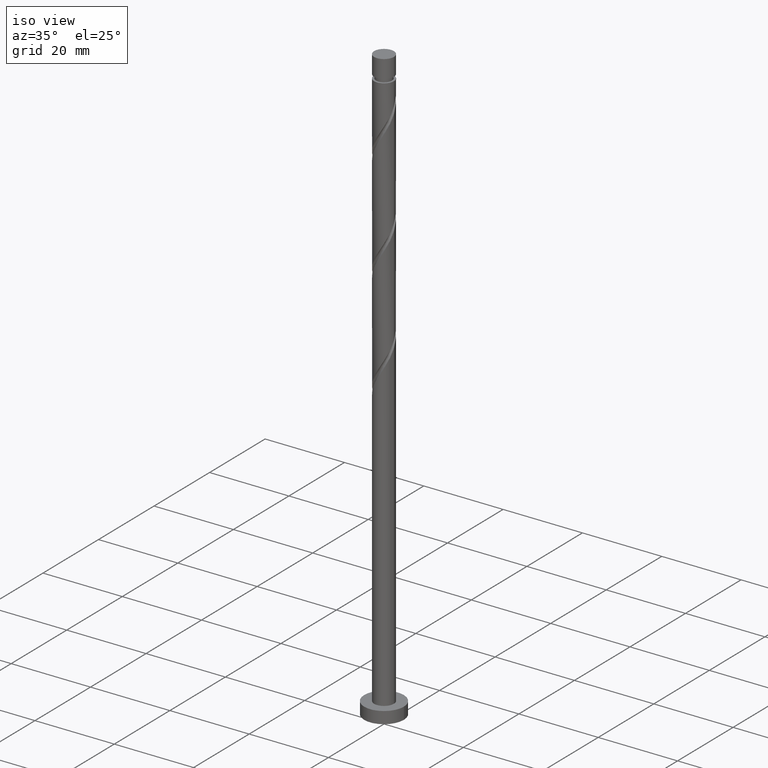
[diagram: clean part render]
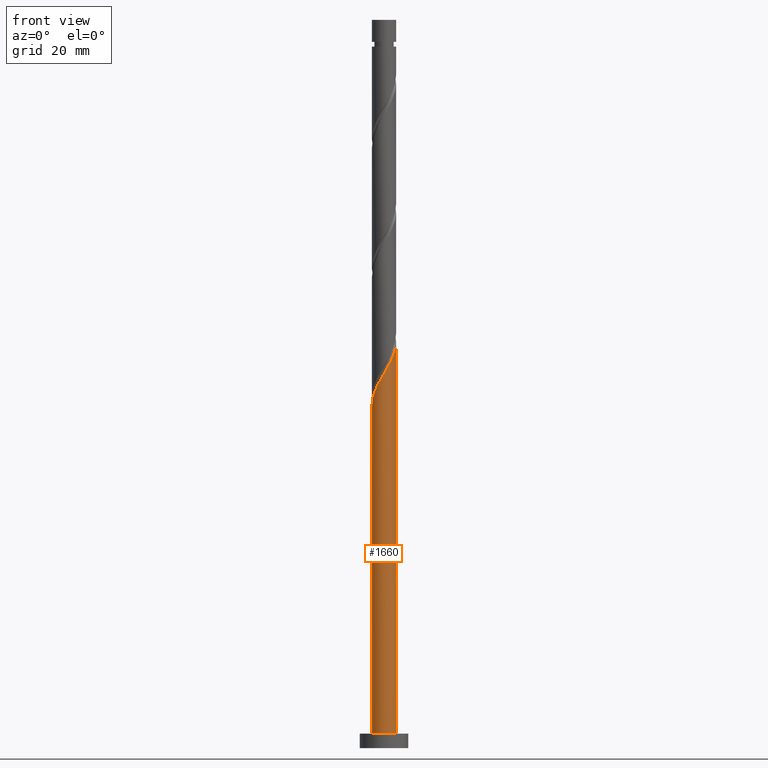
[diagram: tour spotlight — one face highlighted and labeled with its STEP entity id]
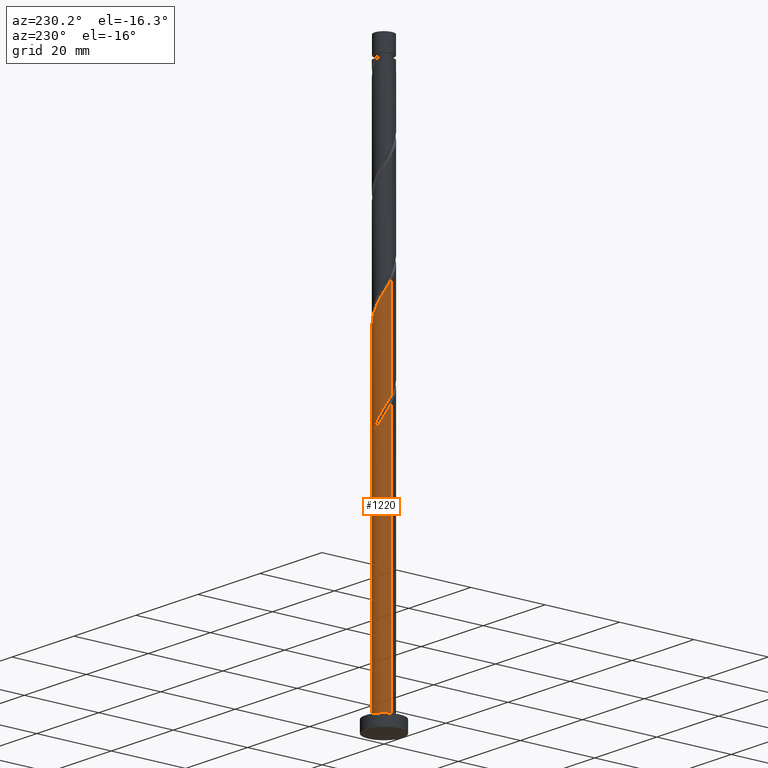
[diagram: tour spotlight — one face highlighted and labeled with its STEP entity id]
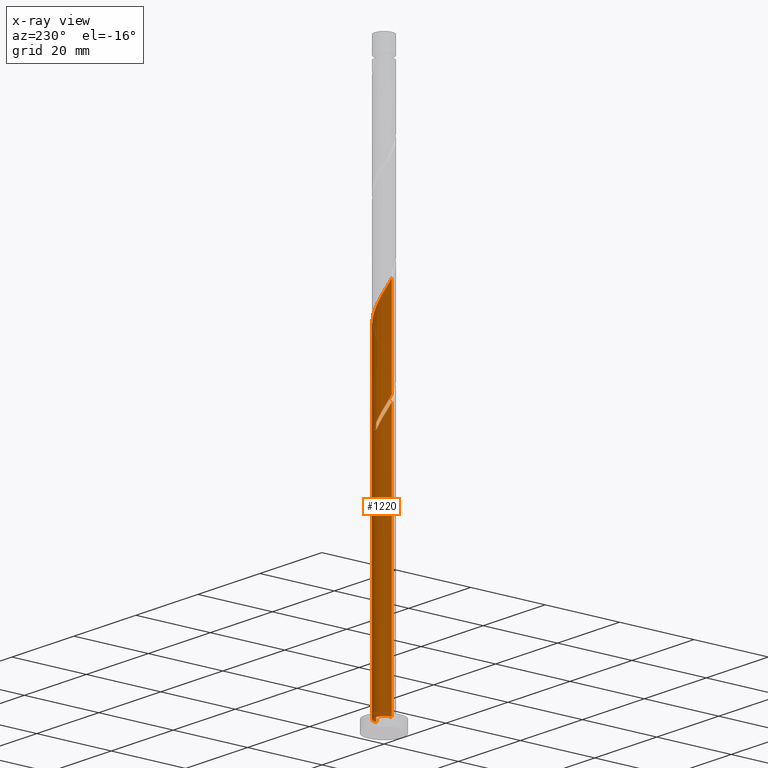
[diagram: x-ray of the same camera — body ghosted, this tour face saturated]
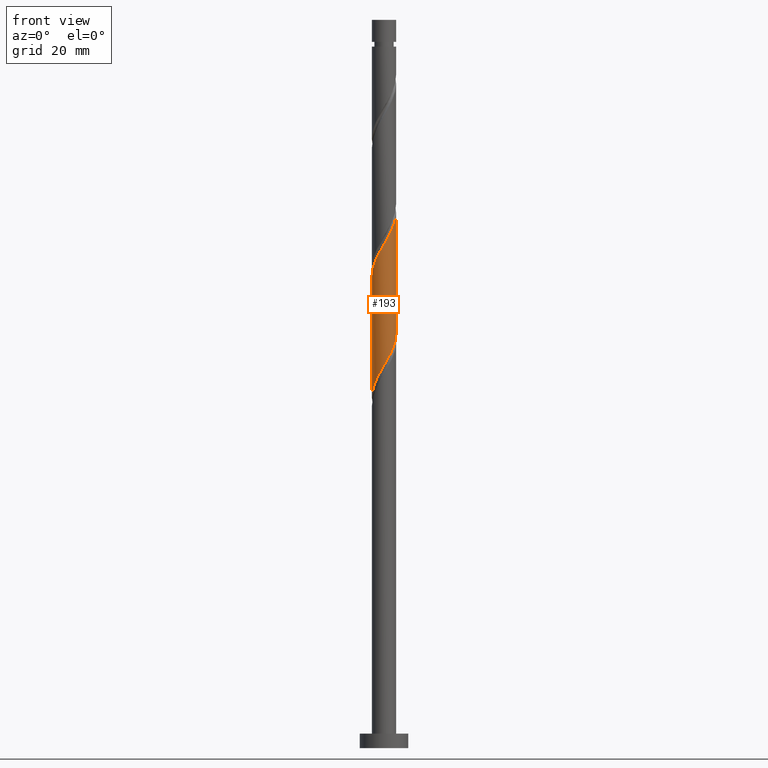
[diagram: tour spotlight — one face highlighted and labeled with its STEP entity id]
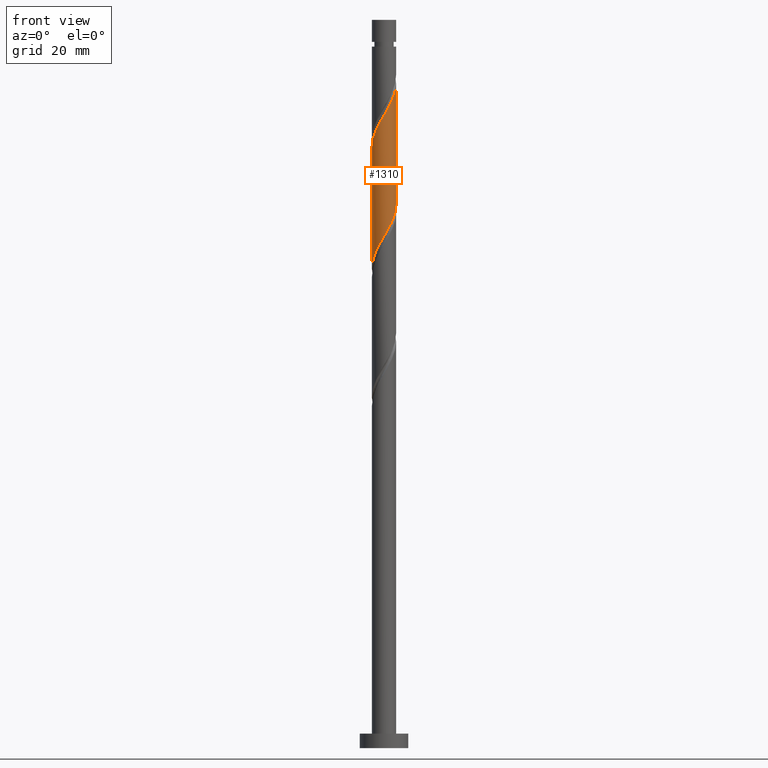
[diagram: tour spotlight — one face highlighted and labeled with its STEP entity id]
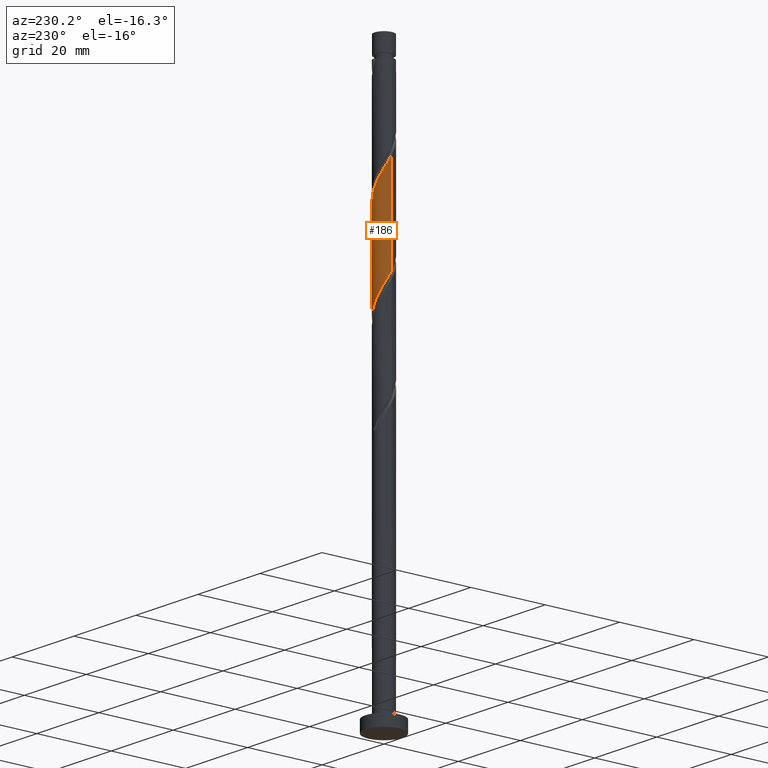
[diagram: tour spotlight — one face highlighted and labeled with its STEP entity id]
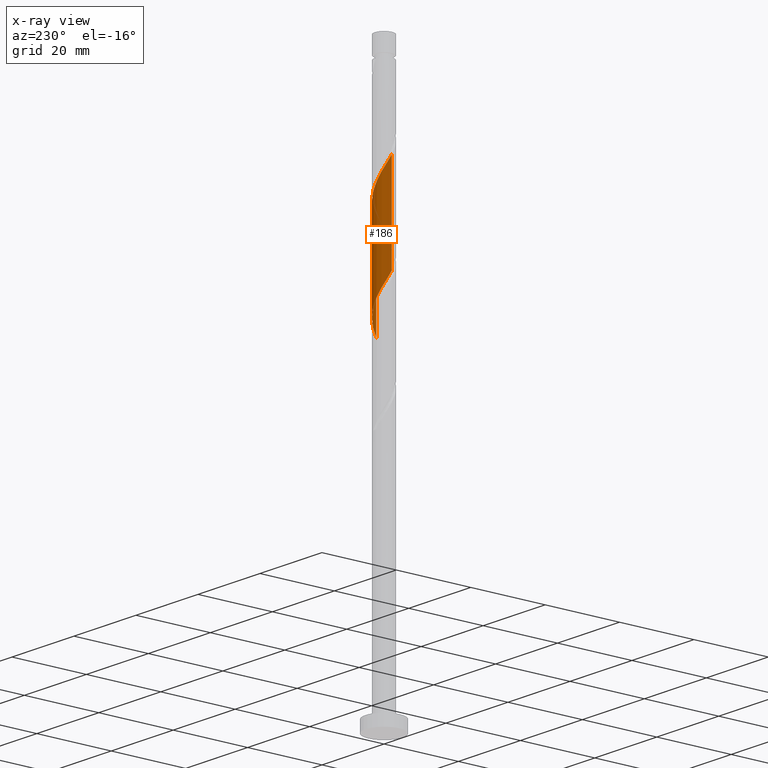
[diagram: x-ray of the same camera — body ghosted, this tour face saturated]
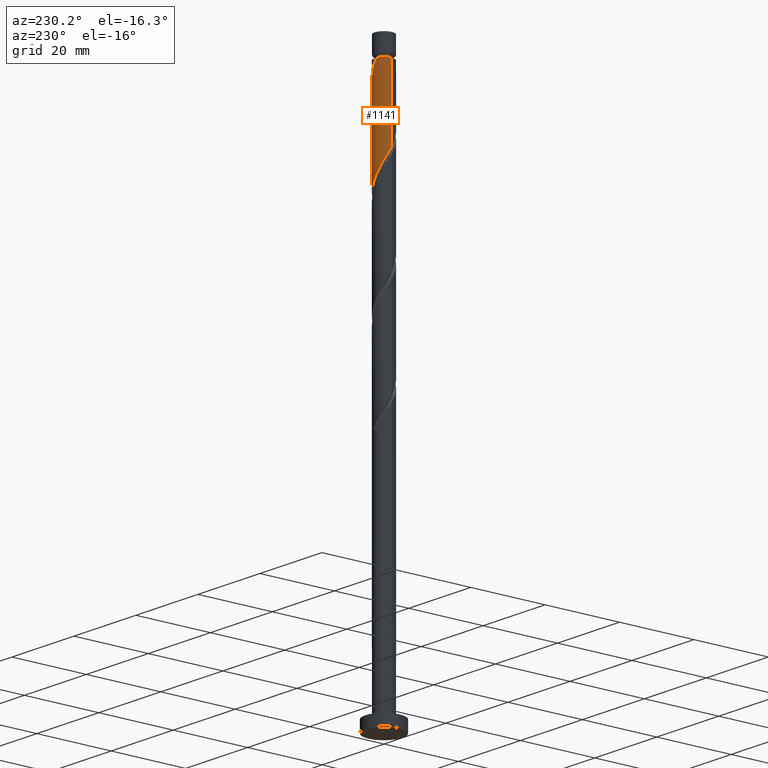
[diagram: tour spotlight — one face highlighted and labeled with its STEP entity id]
A machine part: a face-by-face anatomy tour. The part has 21 B-rep faces; the first image is the clean iso view, then the 6 largest visible faces are spotlighted one at a time (largest first), each with its STEP entity span.

Face 1 — front view, entity #1660. In plain terms, the highlighted cylindrical surface (edge-blend (fillet) strip) has radius 2.5 mm, axis along (-0, -0, -1).
Definition (entity closure, byte-faithful):
#3 = CIRCLE ( 'NONE', #1639, 2.500000000000000000 ) ;
#24 = EDGE_CURVE ( 'NONE', #293, #1240, #591, .T. ) ;
#117 = CARTESIAN_POINT ( 'NONE',  ( 2.500000000000003109, 2.191174233062213370E-15, 84.01617395349154549 ) ) ;
#133 = CARTESIAN_POINT ( 'NONE',  ( 2.435264748179753358, -0.5652305779706354727, 83.04744661461056410 ) ) ;
#172 = ORIENTED_EDGE ( 'NONE', *, *, #24, .F. ) ;
#195 = CARTESIAN_POINT ( 'NONE',  ( -2.500000000000003109, 4.674006469842605132E-15, 70.68284062015820268 ) ) ;
#242 = CARTESIAN_POINT ( 'NONE',  ( 2.500000000000000000, 3.061616997868383141E-16, 3.000000000000000000 ) ) ;
#255 = VERTEX_POINT ( 'NONE', #1051 ) ;
#286 = VECTOR ( 'NONE', #971, 1000.000000000000000 ) ;
#293 = VERTEX_POINT ( 'NONE', #300 ) ;
#295 = DIRECTION ( 'NONE',  ( -1.000000000000000000, 0.000000000000000000, 0.000000000000000000 ) ) ;
#300 = CARTESIAN_POINT ( 'NONE',  ( 2.500000000000003109, 2.191174233062213370E-15, 84.01617395349154549 ) ) ;
#327 = CARTESIAN_POINT ( 'NONE',  ( -2.233329684002606452, -1.179593048026944313, 72.74441631158029509 ) ) ;
#388 = CARTESIAN_POINT ( 'NONE',  ( 2.000754257700509076, -1.541487475360719062, 81.22926479642880793 ) ) ;
#407 = CARTESIAN_POINT ( 'NONE',  ( 0.000000000000000000, 0.000000000000000000, 150.4000000000000057 ) ) ;
#424 = EDGE_LOOP ( 'NONE', ( #172, #843, #1209, #1411 ) ) ;
#437 = VERTEX_POINT ( 'NONE', #1457 ) ;
#479 = CARTESIAN_POINT ( 'NONE',  ( -2.475193905018191920, -0.5026095591624449854, 71.53229509945909115 ) ) ;
#487 = CARTESIAN_POINT ( 'NONE',  ( 2.177375558832926217, -1.228428132125369387, 81.83532540248941700 ) ) ;
#490 = AXIS2_PLACEMENT_3D ( 'NONE', #407, #1560, #295 ) ;
#495 = CARTESIAN_POINT ( 'NONE',  ( -2.500000000000000000, 0.000000000000000000, 150.4000000000000057 ) ) ;
#497 = CARTESIAN_POINT ( 'NONE',  ( -0.9060516544719220411, -2.330036566114083829, 75.77471934188334046 ) ) ;
#504 = CARTESIAN_POINT ( 'NONE',  ( -1.525797355502945152, -1.980389464206532946, 74.56259812976213652 ) ) ;
#572 = CARTESIAN_POINT ( 'NONE',  ( -2.495863270706177417, -0.1437585960555965436, 70.92623449339846786 ) ) ;
#591 = LINE ( 'NONE', #1385, #286 ) ;
#615 = EDGE_CURVE ( 'NONE', #437, #293, #1038, .T. ) ;
#632 = CARTESIAN_POINT ( 'NONE',  ( -1.810534374112179323, -1.761012923450277601, 73.95653752370152745 ) ) ;
#651 = CARTESIAN_POINT ( 'NONE',  ( 2.353996859965343358, -0.9153687888900183811, 82.44138600855002608 ) ) ;
#672 = FACE_OUTER_BOUND ( 'NONE', #424, .T. ) ;
#743 = DIRECTION ( 'NONE',  ( 1.000000000000000000, 0.000000000000000000, 0.000000000000000000 ) ) ;
#771 = CARTESIAN_POINT ( 'NONE',  ( 0.4974937185533109263, -2.450000000000003286, 78.19896176612574834 ) ) ;
#843 = ORIENTED_EDGE ( 'NONE', *, *, #615, .F. ) ;
#879 = CARTESIAN_POINT ( 'NONE',  ( 0.000000000000000000, 0.000000000000000000, 3.000000000000000000 ) ) ;
#882 = CARTESIAN_POINT ( 'NONE',  ( 2.500000000000003997, -0.2863223184628080342, 83.53021400052024603 ) ) ;
#971 = DIRECTION ( 'NONE',  ( -0.000000000000000000, -0.000000000000000000, -1.000000000000000000 ) ) ;
#992 = VECTOR ( 'NONE', #1007, 1000.000000000000000 ) ;
#1007 = DIRECTION ( 'NONE',  ( -0.000000000000000000, -0.000000000000000000, -1.000000000000000000 ) ) ;
#1038 =( BOUNDED_CURVE ( )  B_SPLINE_CURVE ( 2, ( #195, #1375, #572, #479, #1472, #327, #1383, #632, #504, #1652, #497, #1644, #1145, #1530, #771, #1277, #1414, #1295, #1522, #388, #487, #651, #133, #882, #117 ),
 .UNSPECIFIED., .F., .T. ) 
 B_SPLINE_CURVE_WITH_KNOTS ( ( 3, 2, 2, 2, 2, 2, 2, 2, 2, 2, 2, 2, 3 ),
 ( 0.05452521624175119680, 0.05681818181818176772, 0.06818181818181823228, 0.07954545454545458583, 0.09090909090909093937, 0.1022727272727272929, 0.1136363636363636465, 0.1250000000000000000, 0.1363636363636363535, 0.1477272727272727071, 0.1590909090909090606, 0.1704545454545454142, 0.1795252162417512731 ),
 .UNSPECIFIED. ) 
 CURVE ( )  GEOMETRIC_REPRESENTATION_ITEM ( )  RATIONAL_B_SPLINE_CURVE ( ( 0.9061101570135650096, 0.9072237824201471179, 0.9090909090909247148, 0.8998376744372269531, 0.9090909090909247148, 0.8998376744372269531, 0.9090909090909247148, 0.8998376744372269531, 0.9090909090909247148, 0.8998376744372269531, 0.9090909090909247148, 0.8998376744372269531, 0.9090909090909247148, 0.8998376744372269531, 0.9090909090909247148, 0.8998376744372269531, 0.9090909090909247148, 0.8998376744372269531, 0.9090909090909247148, 0.8998376744372269531, 0.9090909090909247148, 0.8998376744372269531, 0.9090909090909247148, 0.9017048011080044390, 0.9061101570135650096 ) ) 
 REPRESENTATION_ITEM ( '' )  );
#1051 = CARTESIAN_POINT ( 'NONE',  ( -2.500000000000000000, 0.000000000000000000, 3.000000000000000000 ) ) ;
#1142 = LINE ( 'NONE', #495, #992 ) ;
#1145 = CARTESIAN_POINT ( 'NONE',  ( -0.2129030368922531502, -2.490917962696097110, 76.98684055400453019 ) ) ;
#1181 = CYLINDRICAL_SURFACE ( 'NONE', #490, 2.500000000000000000 ) ;
#1190 = EDGE_CURVE ( 'NONE', #437, #255, #1142, .T. ) ;
#1209 = ORIENTED_EDGE ( 'NONE', *, *, #1190, .T. ) ;
#1240 = VERTEX_POINT ( 'NONE', #242 ) ;
#1271 = EDGE_CURVE ( 'NONE', #255, #1240, #3, .T. ) ;
#1275 = DIRECTION ( 'NONE',  ( 0.000000000000000000, 0.000000000000000000, 1.000000000000000000 ) ) ;
#1277 = CARTESIAN_POINT ( 'NONE',  ( 0.8497505388409963833, -2.378471201873193941, 78.80502237218637163 ) ) ;
#1295 = CARTESIAN_POINT ( 'NONE',  ( 1.485422444420512189, -2.042724014156700907, 80.01714358430761820 ) ) ;
#1375 = CARTESIAN_POINT ( 'NONE',  ( -2.500000000000003997, -0.07193881630955346884, 70.80493862487641366 ) ) ;
#1383 = CARTESIAN_POINT ( 'NONE',  ( -2.021932029057392555, -1.470302985738610735, 73.35047691764091837 ) ) ;
#1385 = CARTESIAN_POINT ( 'NONE',  ( 2.500000000000000000, 3.061616997868383141E-16, 150.4000000000000057 ) ) ;
#1411 = ORIENTED_EDGE ( 'NONE', *, *, #1271, .T. ) ;
#1414 = CARTESIAN_POINT ( 'NONE',  ( 1.167586491630753454, -2.210597608014947202, 79.41108297824698070 ) ) ;
#1457 = CARTESIAN_POINT ( 'NONE',  ( -2.500000000000003553, 4.674006469842605132E-15, 70.68284062015818847 ) ) ;
#1472 = CARTESIAN_POINT ( 'NONE',  ( -2.354261794510398964, -0.8411013035946942606, 72.13835570551971443 ) ) ;
#1522 = CARTESIAN_POINT ( 'NONE',  ( 1.743088351060510188, -1.792105744758709429, 80.62320419036817043 ) ) ;
#1530 = CARTESIAN_POINT ( 'NONE',  ( 0.1452368982656260799, -2.521528798126814408, 77.59290116006516769 ) ) ;
#1560 = DIRECTION ( 'NONE',  ( -0.000000000000000000, -0.000000000000000000, -1.000000000000000000 ) ) ;
#1639 = AXIS2_PLACEMENT_3D ( 'NONE', #879, #1275, #743 ) ;
#1644 = CARTESIAN_POINT ( 'NONE',  ( -0.5710429720501326578, -2.460307127265380256, 76.38077994794392112 ) ) ;
#1652 = CARTESIAN_POINT ( 'NONE',  ( -1.241060336893711424, -2.199766004962788735, 75.16865873582273139 ) ) ;
#1660 = ADVANCED_FACE ( 'NONE', ( #672 ), #1181, .T. ) ;

Face 2 — auxiliary view, entity #1220. An x-ray twin of the same camera follows (body ghosted, this face saturated) — the face is partly hidden behind the body. In plain terms, the highlighted cylindrical surface (edge-blend (fillet) strip) has radius 2.5 mm, axis along (-0, -0, -1).
Definition (entity closure, byte-faithful):
#7 = CARTESIAN_POINT ( 'NONE',  ( -0.4974937185533107042, 2.450000000000003286, 91.53229509945911957 ) ) ;
#15 = CARTESIAN_POINT ( 'NONE',  ( 2.233329684002606896, 1.179593048026943647, 86.07774964491366632 ) ) ;
#24 = EDGE_CURVE ( 'NONE', #293, #1240, #591, .T. ) ;
#48 = ORIENTED_EDGE ( 'NONE', *, *, #939, .T. ) ;
#73 = CARTESIAN_POINT ( 'NONE',  ( -2.500000000000000444, 9.991156229935629260E-15, 72.38174957876000803 ) ) ;
#78 = CIRCLE ( 'NONE', #1022, 2.500000000000000000 ) ;
#122 = DIRECTION ( 'NONE',  ( -1.000000000000000000, 0.000000000000000000, 0.000000000000000000 ) ) ;
#126 = CARTESIAN_POINT ( 'NONE',  ( 0.2129030368922534833, 2.490917962696097554, 90.32017388733787300 ) ) ;
#143 = CARTESIAN_POINT ( 'NONE',  ( -1.485422444420512189, 2.042724014156701351, 93.35047691764094679 ) ) ;
#163 = EDGE_CURVE ( 'NONE', #293, #1133, #1237, .T. ) ;
#179 = ORIENTED_EDGE ( 'NONE', *, *, #24, .T. ) ;
#210 = CARTESIAN_POINT ( 'NONE',  ( -1.525797355502942043, 1.980389464206530281, 68.50199206915607419 ) ) ;
#238 = CARTESIAN_POINT ( 'NONE',  ( -2.500000000000003109, 0.2863223184628115314, 96.86354733385357463 ) ) ;
#242 = CARTESIAN_POINT ( 'NONE',  ( 2.500000000000000000, 3.061616997868383141E-16, 3.000000000000000000 ) ) ;
#247 = CARTESIAN_POINT ( 'NONE',  ( -0.1452368982656258023, 2.521528798126814408, 90.92623449339851049 ) ) ;
#255 = VERTEX_POINT ( 'NONE', #1051 ) ;
#265 = CARTESIAN_POINT ( 'NONE',  ( 0.5710429720501329909, 2.460307127265380256, 89.71411328127729234 ) ) ;
#283 = ORIENTED_EDGE ( 'NONE', *, *, #1190, .F. ) ;
#286 = VECTOR ( 'NONE', #971, 1000.000000000000000 ) ;
#287 = CARTESIAN_POINT ( 'NONE',  ( 0.4974937185533115924, 2.449999999999999734, 64.86562843279243396 ) ) ;
#293 = VERTEX_POINT ( 'NONE', #300 ) ;
#300 = CARTESIAN_POINT ( 'NONE',  ( 2.500000000000003109, 2.191174233062213370E-15, 84.01617395349154549 ) ) ;
#305 = CARTESIAN_POINT ( 'NONE',  ( 0.000000000000000000, 0.000000000000000000, 64.86562843279244817 ) ) ;
#331 = DIRECTION ( 'NONE',  ( 1.000000000000000000, 0.000000000000000000, 0.000000000000000000 ) ) ;
#339 = CARTESIAN_POINT ( 'NONE',  ( -2.495863270706175197, 0.1437585960555969877, 72.13835570551972864 ) ) ;
#347 = CARTESIAN_POINT ( 'NONE',  ( -2.500000000000003109, 4.674006469842605132E-15, 70.68284062015820268 ) ) ;
#354 = CARTESIAN_POINT ( 'NONE',  ( -2.500000000000003109, -2.295871977986687745E-15, 97.34950728682488830 ) ) ;
#367 = CARTESIAN_POINT ( 'NONE',  ( -2.353996859965342914, 0.9153687888900192693, 95.77471934188336888 ) ) ;
#379 = DIRECTION ( 'NONE',  ( -0.000000000000000000, -0.000000000000000000, -1.000000000000000000 ) ) ;
#383 = CARTESIAN_POINT ( 'NONE',  ( 0.9060516544719209309, 2.330036566114084273, 89.10805267521668327 ) ) ;
#437 = VERTEX_POINT ( 'NONE', #1457 ) ;
#457 = CARTESIAN_POINT ( 'NONE',  ( -2.354261794510395855, 0.8411013035946938166, 70.92623449339851049 ) ) ;
#470 = CARTESIAN_POINT ( 'NONE',  ( -2.435264748179753358, 0.5652305779706355837, 69.71411328127729234 ) ) ;
#491 = CARTESIAN_POINT ( 'NONE',  ( -2.177375558832926217, 1.228428132125368499, 95.16865873582271718 ) ) ;
#495 = CARTESIAN_POINT ( 'NONE',  ( -2.500000000000000000, 0.000000000000000000, 150.4000000000000057 ) ) ;
#506 = CARTESIAN_POINT ( 'NONE',  ( 1.525797355502944486, 1.980389464206532946, 87.89593146309546512 ) ) ;
#514 = CARTESIAN_POINT ( 'NONE',  ( -1.743088351060510188, 1.792105744758709429, 93.95653752370152745 ) ) ;
#539 = VERTEX_POINT ( 'NONE', #1096 ) ;
#555 = CARTESIAN_POINT ( 'NONE',  ( 0.000000000000000000, 0.000000000000000000, 3.000000000000000000 ) ) ;
#570 = CARTESIAN_POINT ( 'NONE',  ( -0.2129030368922524008, 2.490917962696093557, 66.07774964491365211 ) ) ;
#586 = EDGE_CURVE ( 'NONE', #1594, #437, #1118, .T. ) ;
#587 = CARTESIAN_POINT ( 'NONE',  ( -2.500000000000000444, 0.07193881630955813178, 72.25965157404178285 ) ) ;
#591 = LINE ( 'NONE', #1385, #286 ) ;
#645 = CARTESIAN_POINT ( 'NONE',  ( 2.500000000000003553, 0.07193881630955563378, 84.13827195820978488 ) ) ;
#646 = CIRCLE ( 'NONE', #941, 2.500000000000000000 ) ;
#701 = AXIS2_PLACEMENT_3D ( 'NONE', #1528, #379, #122 ) ;
#704 = CARTESIAN_POINT ( 'NONE',  ( -1.743088351060510188, 1.792105744758709429, 67.28987085703484183 ) ) ;
#706 =( BOUNDED_CURVE ( )  B_SPLINE_CURVE ( 2, ( #73, #587, #339, #1107, #457, #735, #1486, #1365, #210, #1116, #830, #1621, #570, #991, #760 ),
 .UNSPECIFIED., .F., .T. ) 
 B_SPLINE_CURVE_WITH_KNOTS ( ( 3, 2, 2, 2, 2, 2, 2, 3 ),
 ( 0.9295252162417513286, 0.9318181818181817677, 0.9431818181818182323, 0.9545454545454545858, 0.9659090909090909394, 0.9772727272727272929, 0.9886363636363636465, 1.000000000000000000 ),
 .UNSPECIFIED. ) 
 CURVE ( )  GEOMETRIC_REPRESENTATION_ITEM ( )  RATIONAL_B_SPLINE_CURVE ( ( 0.9061101570135583483, 0.9072237824201403456, 0.9090909090909178314, 0.8998376744372202918, 0.9090909090909178314, 0.8998376744372202918, 0.9090909090909178314, 0.8998376744372202918, 0.9090909090909178314, 0.8998376744372202918, 0.9090909090909178314, 0.8998376744372202918, 0.9090909090909178314, 0.8998376744372202918, 0.9090909090909178314 ) ) 
 REPRESENTATION_ITEM ( '' )  );
#735 = CARTESIAN_POINT ( 'NONE',  ( -2.233329684002602455, 1.179593048026942981, 70.32017388733790142 ) ) ;
#757 = CARTESIAN_POINT ( 'NONE',  ( -2.500000000000003109, -2.295871977986688140E-15, 97.34950728682488830 ) ) ;
#760 = CARTESIAN_POINT ( 'NONE',  ( 0.4974937185533115924, 2.449999999999999734, 64.86562843279243396 ) ) ;
#764 = CARTESIAN_POINT ( 'NONE',  ( 2.354261794510398964, 0.8411013035946940386, 85.47168903885304303 ) ) ;
#783 = CARTESIAN_POINT ( 'NONE',  ( 2.495863270706177417, 0.1437585960555962661, 84.25956782673182488 ) ) ;
#796 = EDGE_CURVE ( 'NONE', #1133, #539, #1582, .T. ) ;
#804 = DIRECTION ( 'NONE',  ( -0.000000000000000000, -0.000000000000000000, -1.000000000000000000 ) ) ;
#808 = VECTOR ( 'NONE', #804, 1000.000000000000000 ) ;
#830 = CARTESIAN_POINT ( 'NONE',  ( -0.9060516544719195986, 2.330036566114080276, 67.28987085703485604 ) ) ;
#874 = CARTESIAN_POINT ( 'NONE',  ( -2.000754257700509520, 1.541487475360718618, 67.89593146309545091 ) ) ;
#907 = ORIENTED_EDGE ( 'NONE', *, *, #586, .F. ) ;
#914 = CARTESIAN_POINT ( 'NONE',  ( -0.8497505388409966054, 2.378471201873193497, 92.13835570551970022 ) ) ;
#924 = ORIENTED_EDGE ( 'NONE', *, *, #1121, .F. ) ;
#939 = EDGE_CURVE ( 'NONE', #1240, #255, #646, .T. ) ;
#941 = AXIS2_PLACEMENT_3D ( 'NONE', #555, #1077, #331 ) ;
#955 = EDGE_LOOP ( 'NONE', ( #1321, #179, #48, #283, #907, #1311, #924, #1230 ) ) ;
#962 = CARTESIAN_POINT ( 'NONE',  ( -1.167586491630754342, 2.210597608014947202, 66.07774964491363789 ) ) ;
#971 = DIRECTION ( 'NONE',  ( -0.000000000000000000, -0.000000000000000000, -1.000000000000000000 ) ) ;
#986 = CARTESIAN_POINT ( 'NONE',  ( -2.500000000000003109, 0.2863223184628104212, 70.19688066718690322 ) ) ;
#991 = CARTESIAN_POINT ( 'NONE',  ( 0.1452368982656262741, 2.521528798126809967, 65.47168903885302882 ) ) ;
#992 = VECTOR ( 'NONE', #1007, 1000.000000000000000 ) ;
#994 = CARTESIAN_POINT ( 'NONE',  ( -2.177375558832926217, 1.228428132125368499, 68.50199206915604577 ) ) ;
#1007 = DIRECTION ( 'NONE',  ( -0.000000000000000000, -0.000000000000000000, -1.000000000000000000 ) ) ;
#1022 = AXIS2_PLACEMENT_3D ( 'NONE', #305, #1314, #1036 ) ;
#1025 = CARTESIAN_POINT ( 'NONE',  ( 1.241060336893710314, 2.199766004962788735, 88.50199206915608841 ) ) ;
#1028 = CYLINDRICAL_SURFACE ( 'NONE', #701, 2.500000000000000000 ) ;
#1036 = DIRECTION ( 'NONE',  ( -1.000000000000000000, 0.000000000000000000, 0.000000000000000000 ) ) ;
#1051 = CARTESIAN_POINT ( 'NONE',  ( -2.500000000000000000, 0.000000000000000000, 3.000000000000000000 ) ) ;
#1077 = DIRECTION ( 'NONE',  ( 0.000000000000000000, 0.000000000000000000, 1.000000000000000000 ) ) ;
#1096 = CARTESIAN_POINT ( 'NONE',  ( -2.500000000000000444, 9.991156229935629260E-15, 72.38174957876000803 ) ) ;
#1107 = CARTESIAN_POINT ( 'NONE',  ( -2.475193905018188367, 0.5026095591624447634, 71.53229509945910536 ) ) ;
#1116 = CARTESIAN_POINT ( 'NONE',  ( -1.241060336893708538, 2.199766004962784738, 67.89593146309545091 ) ) ;
#1118 =( BOUNDED_CURVE ( )  B_SPLINE_CURVE ( 2, ( #1600, #1119, #962, #1352, #704, #874, #994, #1624, #470, #986, #347 ),
 .UNSPECIFIED., .F., .T. ) 
 B_SPLINE_CURVE_WITH_KNOTS ( ( 3, 2, 2, 2, 2, 3 ),
 ( 0.000000000000000000, 0.01136363636363635354, 0.02272727272727270709, 0.03409090909090906063, 0.04545454545454541417, 0.05452521624175119680 ),
 .UNSPECIFIED. ) 
 CURVE ( )  GEOMETRIC_REPRESENTATION_ITEM ( )  RATIONAL_B_SPLINE_CURVE ( ( 0.9090909090909247148, 0.8998376744372269531, 0.9090909090909247148, 0.8998376744372269531, 0.9090909090909247148, 0.8998376744372269531, 0.9090909090909247148, 0.8998376744372269531, 0.9090909090909247148, 0.9017048011080045500, 0.9061101570135650096 ) ) 
 REPRESENTATION_ITEM ( '' )  );
#1119 = CARTESIAN_POINT ( 'NONE',  ( -0.8497505388409966054, 2.378471201873193497, 65.47168903885304303 ) ) ;
#1121 = EDGE_CURVE ( 'NONE', #539, #1568, #706, .T. ) ;
#1133 = VERTEX_POINT ( 'NONE', #354 ) ;
#1142 = LINE ( 'NONE', #495, #992 ) ;
#1147 = CARTESIAN_POINT ( 'NONE',  ( -1.167586491630754342, 2.210597608014947202, 92.74441631158026667 ) ) ;
#1157 = CARTESIAN_POINT ( 'NONE',  ( 1.810534374112180434, 1.761012923450276935, 87.28987085703487026 ) ) ;
#1190 = EDGE_CURVE ( 'NONE', #437, #255, #1142, .T. ) ;
#1220 = ADVANCED_FACE ( 'NONE', ( #1536 ), #1028, .T. ) ;
#1230 = ORIENTED_EDGE ( 'NONE', *, *, #796, .F. ) ;
#1237 =( BOUNDED_CURVE ( )  B_SPLINE_CURVE ( 2, ( #1663, #645, #783, #1303, #764, #15, #1549, #1157, #506, #1025, #383, #265, #126, #247, #7, #914, #1147, #143, #514, #1646, #491, #367, #1393, #238, #757 ),
 .UNSPECIFIED., .F., .T. ) 
 B_SPLINE_CURVE_WITH_KNOTS ( ( 3, 2, 2, 2, 2, 2, 2, 2, 2, 2, 2, 2, 3 ),
 ( 0.1795252162417512731, 0.1818181818181817677, 0.1931818181818182323, 0.2045454545454545858, 0.2159090909090909394, 0.2272727272727272929, 0.2386363636363636465, 0.2500000000000000000, 0.2613636363636363535, 0.2727272727272727071, 0.2840909090909090606, 0.2954545454545454142, 0.3045252162417511621 ),
 .UNSPECIFIED. ) 
 CURVE ( )  GEOMETRIC_REPRESENTATION_ITEM ( )  RATIONAL_B_SPLINE_CURVE ( ( 0.9061101570135650096, 0.9072237824201472289, 0.9090909090909247148, 0.8998376744372269531, 0.9090909090909247148, 0.8998376744372269531, 0.9090909090909247148, 0.8998376744372269531, 0.9090909090909247148, 0.8998376744372269531, 0.9090909090909247148, 0.8998376744372269531, 0.9090909090909247148, 0.8998376744372269531, 0.9090909090909247148, 0.8998376744372269531, 0.9090909090909247148, 0.8998376744372269531, 0.9090909090909247148, 0.8998376744372269531, 0.9090909090909247148, 0.8998376744372269531, 0.9090909090909247148, 0.9017048011080045500, 0.9061101570135648986 ) ) 
 REPRESENTATION_ITEM ( '' )  );
#1240 = VERTEX_POINT ( 'NONE', #242 ) ;
#1303 = CARTESIAN_POINT ( 'NONE',  ( 2.475193905018191920, 0.5026095591624447634, 84.86562843279243396 ) ) ;
#1311 = ORIENTED_EDGE ( 'NONE', *, *, #1482, .T. ) ;
#1314 = DIRECTION ( 'NONE',  ( 0.000000000000000000, -0.000000000000000000, -1.000000000000000000 ) ) ;
#1321 = ORIENTED_EDGE ( 'NONE', *, *, #163, .F. ) ;
#1352 = CARTESIAN_POINT ( 'NONE',  ( -1.485422444420512189, 2.042724014156701351, 66.68381025097424697 ) ) ;
#1365 = CARTESIAN_POINT ( 'NONE',  ( -1.810534374112175993, 1.761012923450275158, 69.10805267521668327 ) ) ;
#1385 = CARTESIAN_POINT ( 'NONE',  ( 2.500000000000000000, 3.061616997868383141E-16, 150.4000000000000057 ) ) ;
#1393 = CARTESIAN_POINT ( 'NONE',  ( -2.435264748179753358, 0.5652305779706355837, 96.38077994794393533 ) ) ;
#1455 = CARTESIAN_POINT ( 'NONE',  ( -2.500000000000000000, 0.000000000000000000, 150.4000000000000057 ) ) ;
#1457 = CARTESIAN_POINT ( 'NONE',  ( -2.500000000000003553, 4.674006469842605132E-15, 70.68284062015818847 ) ) ;
#1482 = EDGE_CURVE ( 'NONE', #1594, #1568, #78, .T. ) ;
#1486 = CARTESIAN_POINT ( 'NONE',  ( -2.021932029057389890, 1.470302985738608958, 69.71411328127730656 ) ) ;
#1528 = CARTESIAN_POINT ( 'NONE',  ( 0.000000000000000000, 0.000000000000000000, 150.4000000000000057 ) ) ;
#1536 = FACE_OUTER_BOUND ( 'NONE', #955, .T. ) ;
#1549 = CARTESIAN_POINT ( 'NONE',  ( 2.021932029057392999, 1.470302985738610069, 86.68381025097424697 ) ) ;
#1568 = VERTEX_POINT ( 'NONE', #287 ) ;
#1572 = CARTESIAN_POINT ( 'NONE',  ( -0.4974937185533107042, 2.450000000000003286, 64.86562843279243396 ) ) ;
#1582 = LINE ( 'NONE', #1455, #808 ) ;
#1594 = VERTEX_POINT ( 'NONE', #1572 ) ;
#1600 = CARTESIAN_POINT ( 'NONE',  ( -0.4974937185533107042, 2.450000000000003286, 64.86562843279243396 ) ) ;
#1621 = CARTESIAN_POINT ( 'NONE',  ( -0.5710429720501312145, 2.460307127265375371, 66.68381025097424697 ) ) ;
#1624 = CARTESIAN_POINT ( 'NONE',  ( -2.353996859965342914, 0.9153687888900192693, 69.10805267521666906 ) ) ;
#1646 = CARTESIAN_POINT ( 'NONE',  ( -2.000754257700509520, 1.541487475360718618, 94.56259812976215073 ) ) ;
#1663 = CARTESIAN_POINT ( 'NONE',  ( 2.500000000000003109, 2.191174233062213370E-15, 84.01617395349154549 ) ) ;

Face 3 — front view, entity #193. In plain terms, the highlighted cylindrical surface (edge-blend (fillet) strip) has radius 2.5 mm, axis along (-0, -0, -1).
Definition (entity closure, byte-faithful):
#21 = CARTESIAN_POINT ( 'NONE',  ( 0.4974937185533109263, -2.450000000000003286, 104.8656284327924055 ) ) ;
#38 = CARTESIAN_POINT ( 'NONE',  ( -0.2129030368922531502, -2.490917962696097110, 103.6535072206712442 ) ) ;
#40 = DIRECTION ( 'NONE',  ( -1.000000000000000000, 0.000000000000000000, 0.000000000000000000 ) ) ;
#46 = CARTESIAN_POINT ( 'NONE',  ( 2.500000000000002665, 2.191174233062213370E-15, 110.6828406201582169 ) ) ;
#52 = CARTESIAN_POINT ( 'NONE',  ( -1.241060336893711424, -2.199766004962788735, 101.8353254024894170 ) ) ;
#60 = CARTESIAN_POINT ( 'NONE',  ( 1.810534374112176215, -1.761012923450274714, 82.44138600854999765 ) ) ;
#69 =( BOUNDED_CURVE ( )  B_SPLINE_CURVE ( 2, ( #1343, #190, #82, #1251, #1470, #182, #1100, #60, #1094, #435, #1125, #952, #576, #1606, #975, #853, #967, #324, #345, #443, #1464, #200, #317, #845, #959 ),
 .UNSPECIFIED., .F., .T. ) 
 B_SPLINE_CURVE_WITH_KNOTS ( ( 3, 2, 2, 2, 2, 2, 2, 2, 2, 2, 2, 2, 3 ),
 ( 0.8045252162417512176, 0.8068181818181817677, 0.8181818181818182323, 0.8295454545454545858, 0.8409090909090909394, 0.8522727272727272929, 0.8636363636363636465, 0.8750000000000000000, 0.8863636363636363535, 0.8977272727272727071, 0.9090909090909090606, 0.9204545454545454142, 0.9295252162417513286 ),
 .UNSPECIFIED. ) 
 CURVE ( )  GEOMETRIC_REPRESENTATION_ITEM ( )  RATIONAL_B_SPLINE_CURVE ( ( 0.9061101570135582373, 0.9072237824201403456, 0.9090909090909178314, 0.8998376744372202918, 0.9090909090909178314, 0.8998376744372202918, 0.9090909090909178314, 0.8998376744372202918, 0.9090909090909178314, 0.8998376744372202918, 0.9090909090909178314, 0.8998376744372202918, 0.9090909090909178314, 0.8998376744372202918, 0.9090909090909178314, 0.8998376744372202918, 0.9090909090909178314, 0.8998376744372202918, 0.9090909090909178314, 0.8998376744372202918, 0.9090909090909178314, 0.8998376744372202918, 0.9090909090909178314, 0.9017048011079977776, 0.9061101570135583483 ) ) 
 REPRESENTATION_ITEM ( '' )  );
#82 = CARTESIAN_POINT ( 'NONE',  ( 2.495863270706175197, -0.1437585960555973208, 85.47168903885302882 ) ) ;
#148 = CARTESIAN_POINT ( 'NONE',  ( 0.8497505388409963833, -2.378471201873193941, 105.4716890388530430 ) ) ;
#153 = LINE ( 'NONE', #917, #709 ) ;
#156 = CARTESIAN_POINT ( 'NONE',  ( -2.233329684002606452, -1.179593048026944313, 99.41108297824700912 ) ) ;
#182 = CARTESIAN_POINT ( 'NONE',  ( 2.233329684002602455, -1.179593048026942759, 83.65350722067120159 ) ) ;
#190 = CARTESIAN_POINT ( 'NONE',  ( 2.500000000000000444, -0.07193881630955506479, 85.59298490737509724 ) ) ;
#193 = ADVANCED_FACE ( 'NONE', ( #319 ), #1337, .T. ) ;
#200 = CARTESIAN_POINT ( 'NONE',  ( -2.353996859965338917, -0.9153687888900168268, 73.95653752370151324 ) ) ;
#204 = EDGE_LOOP ( 'NONE', ( #678, #528, #259, #1187 ) ) ;
#259 = ORIENTED_EDGE ( 'NONE', *, *, #796, .T. ) ;
#298 = CARTESIAN_POINT ( 'NONE',  ( 2.435264748179753358, -0.5652305779706354727, 109.7141132812772781 ) ) ;
#317 = CARTESIAN_POINT ( 'NONE',  ( -2.435264748179748917, -0.5652305779706338074, 73.35047691764091837 ) ) ;
#319 = FACE_OUTER_BOUND ( 'NONE', #204, .T. ) ;
#324 = CARTESIAN_POINT ( 'NONE',  ( -1.485422444420509969, -2.042724014156698242, 76.38077994794392112 ) ) ;
#345 = CARTESIAN_POINT ( 'NONE',  ( -1.743088351060508412, -1.792105744758706098, 75.77471934188334046 ) ) ;
#354 = CARTESIAN_POINT ( 'NONE',  ( -2.500000000000003109, -2.295871977986687745E-15, 97.34950728682488830 ) ) ;
#402 = CARTESIAN_POINT ( 'NONE',  ( 2.177375558832926217, -1.228428132125369387, 108.5019920691560600 ) ) ;
#420 = CARTESIAN_POINT ( 'NONE',  ( 1.485422444420512189, -2.042724014156700907, 106.6838102509742612 ) ) ;
#435 = CARTESIAN_POINT ( 'NONE',  ( 1.241060336893708094, -2.199766004962785182, 81.22926479642880793 ) ) ;
#443 = CARTESIAN_POINT ( 'NONE',  ( -2.000754257700505967, -1.541487475360714621, 75.16865873582273139 ) ) ;
#525 = CARTESIAN_POINT ( 'NONE',  ( 1.743088351060510188, -1.792105744758709429, 107.2898708570348276 ) ) ;
#528 = ORIENTED_EDGE ( 'NONE', *, *, #891, .F. ) ;
#539 = VERTEX_POINT ( 'NONE', #1096 ) ;
#545 = CARTESIAN_POINT ( 'NONE',  ( -0.5710429720501326578, -2.460307127265380256, 103.0474466146106209 ) ) ;
#557 = VERTEX_POINT ( 'NONE', #838 ) ;
#563 = CARTESIAN_POINT ( 'NONE',  ( -0.9060516544719220411, -2.330036566114083829, 102.4413860085499834 ) ) ;
#566 = DIRECTION ( 'NONE',  ( -0.000000000000000000, -0.000000000000000000, -1.000000000000000000 ) ) ;
#576 = CARTESIAN_POINT ( 'NONE',  ( 0.2129030368922517069, -2.490917962696093557, 79.41108297824698070 ) ) ;
#581 =( BOUNDED_CURVE ( )  B_SPLINE_CURVE ( 2, ( #1177, #1316, #694, #1301, #1438, #156, #1445, #675, #1210, #52, #563, #545, #38, #1068, #21, #148, #666, #420, #525, #1049, #402, #936, #298, #684, #46 ),
 .UNSPECIFIED., .F., .T. ) 
 B_SPLINE_CURVE_WITH_KNOTS ( ( 3, 2, 2, 2, 2, 2, 2, 2, 2, 2, 2, 2, 3 ),
 ( 0.3045252162417511621, 0.3068181818181817677, 0.3181818181818182323, 0.3295454545454545858, 0.3409090909090909394, 0.3522727272727272929, 0.3636363636363636465, 0.3750000000000000000, 0.3863636363636363535, 0.3977272727272727071, 0.4090909090909090606, 0.4204545454545454142, 0.4295252162417516062 ),
 .UNSPECIFIED. ) 
 CURVE ( )  GEOMETRIC_REPRESENTATION_ITEM ( )  RATIONAL_B_SPLINE_CURVE ( ( 0.9061101570135648986, 0.9072237824201471179, 0.9090909090909247148, 0.8998376744372269531, 0.9090909090909247148, 0.8998376744372269531, 0.9090909090909247148, 0.8998376744372269531, 0.9090909090909247148, 0.8998376744372269531, 0.9090909090909247148, 0.8998376744372269531, 0.9090909090909247148, 0.8998376744372269531, 0.9090909090909247148, 0.8998376744372269531, 0.9090909090909247148, 0.8998376744372269531, 0.9090909090909247148, 0.8998376744372269531, 0.9090909090909247148, 0.8998376744372269531, 0.9090909090909247148, 0.9017048011080042169, 0.9061101570135653427 ) ) 
 REPRESENTATION_ITEM ( '' )  );
#666 = CARTESIAN_POINT ( 'NONE',  ( 1.167586491630753454, -2.210597608014947202, 106.0777496449136521 ) ) ;
#668 = CARTESIAN_POINT ( 'NONE',  ( 0.000000000000000000, 0.000000000000000000, 150.4000000000000057 ) ) ;
#675 = CARTESIAN_POINT ( 'NONE',  ( -1.810534374112179323, -1.761012923450277601, 100.6232041903681989 ) ) ;
#678 = ORIENTED_EDGE ( 'NONE', *, *, #1638, .F. ) ;
#684 = CARTESIAN_POINT ( 'NONE',  ( 2.500000000000006217, -0.2863223184627975426, 110.1968806671869316 ) ) ;
#694 = CARTESIAN_POINT ( 'NONE',  ( -2.495863270706177417, -0.1437585960555965436, 97.59290116006515348 ) ) ;
#709 = VECTOR ( 'NONE', #1313, 1000.000000000000000 ) ;
#722 = VERTEX_POINT ( 'NONE', #1136 ) ;
#796 = EDGE_CURVE ( 'NONE', #1133, #539, #1582, .T. ) ;
#804 = DIRECTION ( 'NONE',  ( -0.000000000000000000, -0.000000000000000000, -1.000000000000000000 ) ) ;
#808 = VECTOR ( 'NONE', #804, 1000.000000000000000 ) ;
#827 = AXIS2_PLACEMENT_3D ( 'NONE', #668, #566, #40 ) ;
#838 = CARTESIAN_POINT ( 'NONE',  ( 2.500000000000000444, 3.484939223914673654E-15, 85.71508291209332242 ) ) ;
#845 = CARTESIAN_POINT ( 'NONE',  ( -2.499999999999999556, -0.2863223184628050366, 72.86770953173127907 ) ) ;
#853 = CARTESIAN_POINT ( 'NONE',  ( -0.8497505388409957172, -2.378471201873189500, 77.59290116006515348 ) ) ;
#891 = EDGE_CURVE ( 'NONE', #1133, #722, #581, .T. ) ;
#917 = CARTESIAN_POINT ( 'NONE',  ( 2.500000000000000000, 3.061616997868383141E-16, 150.4000000000000057 ) ) ;
#936 = CARTESIAN_POINT ( 'NONE',  ( 2.353996859965343358, -0.9153687888900183811, 109.1080526752166691 ) ) ;
#952 = CARTESIAN_POINT ( 'NONE',  ( 0.5710429720501314366, -2.460307127265375815, 80.01714358430758978 ) ) ;
#959 = CARTESIAN_POINT ( 'NONE',  ( -2.500000000000000444, 9.991156229935629260E-15, 72.38174957876000803 ) ) ;
#967 = CARTESIAN_POINT ( 'NONE',  ( -1.167586491630752565, -2.210597608014943649, 76.98684055400455861 ) ) ;
#975 = CARTESIAN_POINT ( 'NONE',  ( -0.4974937185533113704, -2.449999999999999734, 78.19896176612577676 ) ) ;
#1046 = EDGE_CURVE ( 'NONE', #557, #539, #69, .T. ) ;
#1049 = CARTESIAN_POINT ( 'NONE',  ( 2.000754257700509076, -1.541487475360719062, 107.8959314630954651 ) ) ;
#1068 = CARTESIAN_POINT ( 'NONE',  ( 0.1452368982656260799, -2.521528798126814408, 104.2595678267318391 ) ) ;
#1094 = CARTESIAN_POINT ( 'NONE',  ( 1.525797355502941821, -1.980389464206530281, 81.83532540248940279 ) ) ;
#1096 = CARTESIAN_POINT ( 'NONE',  ( -2.500000000000000444, 9.991156229935629260E-15, 72.38174957876000803 ) ) ;
#1100 = CARTESIAN_POINT ( 'NONE',  ( 2.021932029057389890, -1.470302985738608958, 83.04744661461060673 ) ) ;
#1125 = CARTESIAN_POINT ( 'NONE',  ( 0.9060516544719195986, -2.330036566114080276, 80.62320419036822727 ) ) ;
#1133 = VERTEX_POINT ( 'NONE', #354 ) ;
#1136 = CARTESIAN_POINT ( 'NONE',  ( 2.500000000000003109, 2.191174233062213370E-15, 110.6828406201582169 ) ) ;
#1177 = CARTESIAN_POINT ( 'NONE',  ( -2.500000000000003109, -2.295871977986688140E-15, 97.34950728682488830 ) ) ;
#1187 = ORIENTED_EDGE ( 'NONE', *, *, #1046, .F. ) ;
#1210 = CARTESIAN_POINT ( 'NONE',  ( -1.525797355502945152, -1.980389464206532946, 101.2292647964287653 ) ) ;
#1251 = CARTESIAN_POINT ( 'NONE',  ( 2.475193905018188367, -0.5026095591624450964, 84.86562843279240553 ) ) ;
#1301 = CARTESIAN_POINT ( 'NONE',  ( -2.475193905018191920, -0.5026095591624449854, 98.19896176612579097 ) ) ;
#1313 = DIRECTION ( 'NONE',  ( -0.000000000000000000, -0.000000000000000000, -1.000000000000000000 ) ) ;
#1316 = CARTESIAN_POINT ( 'NONE',  ( -2.500000000000003997, -0.07193881630955233086, 97.47160529154309927 ) ) ;
#1337 = CYLINDRICAL_SURFACE ( 'NONE', #827, 2.500000000000000000 ) ;
#1343 = CARTESIAN_POINT ( 'NONE',  ( 2.500000000000000444, 3.484939223914673654E-15, 85.71508291209332242 ) ) ;
#1438 = CARTESIAN_POINT ( 'NONE',  ( -2.354261794510398964, -0.8411013035946942606, 98.80502237218638584 ) ) ;
#1445 = CARTESIAN_POINT ( 'NONE',  ( -2.021932029057392555, -1.470302985738610735, 100.0171435843075898 ) ) ;
#1455 = CARTESIAN_POINT ( 'NONE',  ( -2.500000000000000000, 0.000000000000000000, 150.4000000000000057 ) ) ;
#1464 = CARTESIAN_POINT ( 'NONE',  ( -2.177375558832922664, -1.228428132125366279, 74.56259812976215073 ) ) ;
#1470 = CARTESIAN_POINT ( 'NONE',  ( 2.354261794510395411, -0.8411013035946941496, 84.25956782673182488 ) ) ;
#1582 = LINE ( 'NONE', #1455, #808 ) ;
#1606 = CARTESIAN_POINT ( 'NONE',  ( -0.1452368982656269403, -2.521528798126809967, 78.80502237218638584 ) ) ;
#1638 = EDGE_CURVE ( 'NONE', #722, #557, #153, .T. ) ;

Face 4 — front view, entity #1310. In plain terms, the highlighted cylindrical surface (edge-blend (fillet) strip) has radius 2.5 mm, axis along (-0, -0, -1).
Definition (entity closure, byte-faithful):
#32 = CARTESIAN_POINT ( 'NONE',  ( 1.743088351060510188, -1.792105744758709429, 133.9565375237014564 ) ) ;
#44 = DIRECTION ( 'NONE',  ( -0.000000000000000000, -0.000000000000000000, -1.000000000000000000 ) ) ;
#63 = ORIENTED_EDGE ( 'NONE', *, *, #462, .F. ) ;
#70 = CARTESIAN_POINT ( 'NONE',  ( 2.354261794510395411, -0.8411013035946941496, 110.9262344933984679 ) ) ;
#91 = CARTESIAN_POINT ( 'NONE',  ( -2.000754257700505967, -1.541487475360714621, 101.8353254024893886 ) ) ;
#150 = CARTESIAN_POINT ( 'NONE',  ( -1.810534374112179323, -1.761012923450277601, 127.2898708570348560 ) ) ;
#159 = CARTESIAN_POINT ( 'NONE',  ( 1.167586491630753454, -2.210597608014947202, 132.7444163115802951 ) ) ;
#166 = LINE ( 'NONE', #1555, #1370 ) ;
#168 = CARTESIAN_POINT ( 'NONE',  ( -0.5710429720501326578, -2.460307127265380256, 129.7141132812772639 ) ) ;
#212 = CARTESIAN_POINT ( 'NONE',  ( -2.500000000000000888, -0.2863223184628016504, 99.53437619839796469 ) ) ;
#221 = CARTESIAN_POINT ( 'NONE',  ( 2.500000000000000444, 3.484939223914673654E-15, 112.3817495787600080 ) ) ;
#246 = EDGE_CURVE ( 'NONE', #1286, #1213, #881, .T. ) ;
#277 = CARTESIAN_POINT ( 'NONE',  ( 2.500000000000000000, 3.061616997868383141E-16, 150.4000000000000057 ) ) ;
#282 = ORIENTED_EDGE ( 'NONE', *, *, #246, .F. ) ;
#291 = CARTESIAN_POINT ( 'NONE',  ( 0.8497505388409963833, -2.378471201873193941, 132.1383557055197002 ) ) ;
#307 = DIRECTION ( 'NONE',  ( -0.000000000000000000, -0.000000000000000000, -1.000000000000000000 ) ) ;
#334 = CARTESIAN_POINT ( 'NONE',  ( 2.021932029057389890, -1.470302985738608958, 109.7141132812772923 ) ) ;
#356 = CARTESIAN_POINT ( 'NONE',  ( 1.810534374112176215, -1.761012923450274714, 109.1080526752166548 ) ) ;
#376 = VECTOR ( 'NONE', #44, 1000.000000000000000 ) ;
#414 = CARTESIAN_POINT ( 'NONE',  ( -1.241060336893711424, -2.199766004962788735, 128.5019920691560742 ) ) ;
#452 = CARTESIAN_POINT ( 'NONE',  ( -2.353996859965338917, -0.9153687888900168268, 100.6232041903681704 ) ) ;
#462 = EDGE_CURVE ( 'NONE', #1115, #1558, #1626, .T. ) ;
#538 = CARTESIAN_POINT ( 'NONE',  ( 2.435264748179753358, -0.5652305779706354727, 136.3807799479439211 ) ) ;
#558 = CARTESIAN_POINT ( 'NONE',  ( 0.4974937185533109263, -2.450000000000003286, 131.5322950994590769 ) ) ;
#578 = CARTESIAN_POINT ( 'NONE',  ( 0.5710429720501314366, -2.460307127265375815, 106.6838102509742470 ) ) ;
#589 = CARTESIAN_POINT ( 'NONE',  ( -2.500000000000000444, 9.991156229935629260E-15, 99.04841624542666523 ) ) ;
#677 = CARTESIAN_POINT ( 'NONE',  ( -2.354261794510398964, -0.8411013035946942606, 125.4716890388530004 ) ) ;
#688 = CARTESIAN_POINT ( 'NONE',  ( 2.177375558832926217, -1.228428132125369387, 135.1686587358227030 ) ) ;
#697 = CARTESIAN_POINT ( 'NONE',  ( 1.485422444420512189, -2.042724014156700907, 133.3504769176409184 ) ) ;
#713 = CARTESIAN_POINT ( 'NONE',  ( 2.495863270706175197, -0.1437585960555973208, 112.1383557055197144 ) ) ;
#719 = CARTESIAN_POINT ( 'NONE',  ( -0.1452368982656269403, -2.521528798126809967, 105.4716890388530288 ) ) ;
#737 = CARTESIAN_POINT ( 'NONE',  ( 0.2129030368922517069, -2.490917962696093557, 106.0777496449136379 ) ) ;
#753 = FACE_OUTER_BOUND ( 'NONE', #1054, .T. ) ;
#832 = CARTESIAN_POINT ( 'NONE',  ( 2.353996859965343358, -0.9153687888900183811, 135.7747193418833547 ) ) ;
#836 = CARTESIAN_POINT ( 'NONE',  ( 2.500000000000000444, 3.484939223914673654E-15, 112.3817495787600080 ) ) ;
#848 = CARTESIAN_POINT ( 'NONE',  ( 0.9060516544719195986, -2.330036566114080276, 107.2898708570348560 ) ) ;
#855 = CARTESIAN_POINT ( 'NONE',  ( 2.475193905018188367, -0.5026095591624450964, 111.5322950994590911 ) ) ;
#868 = EDGE_CURVE ( 'NONE', #1286, #1558, #166, .T. ) ;
#881 =( BOUNDED_CURVE ( )  B_SPLINE_CURVE ( 2, ( #1346, #1329, #1431, #931, #677, #1593, #1086, #150, #1071, #414, #1195, #168, #1061, #1319, #558, #291, #159, #697, #32, #1186, #688, #832, #538, #948, #1567 ),
 .UNSPECIFIED., .F., .T. ) 
 B_SPLINE_CURVE_WITH_KNOTS ( ( 3, 2, 2, 2, 2, 2, 2, 2, 2, 2, 2, 2, 3 ),
 ( 0.5545252162417514397, 0.5568181818181818787, 0.5681818181818181213, 0.5795454545454545858, 0.5909090909090908283, 0.6022727272727272929, 0.6136363636363636465, 0.6250000000000000000, 0.6363636363636363535, 0.6477272727272727071, 0.6590909090909091717, 0.6704545454545454142, 0.6795252162417514397 ),
 .UNSPECIFIED. ) 
 CURVE ( )  GEOMETRIC_REPRESENTATION_ITEM ( )  RATIONAL_B_SPLINE_CURVE ( ( 0.9061101570135650096, 0.9072237824201472289, 0.9090909090909247148, 0.8998376744372269531, 0.9090909090909247148, 0.8998376744372269531, 0.9090909090909247148, 0.8998376744372269531, 0.9090909090909247148, 0.8998376744372269531, 0.9090909090909247148, 0.8998376744372269531, 0.9090909090909247148, 0.8998376744372269531, 0.9090909090909247148, 0.8998376744372269531, 0.9090909090909247148, 0.8998376744372269531, 0.9090909090909247148, 0.8998376744372269531, 0.9090909090909247148, 0.8998376744372269531, 0.9090909090909247148, 0.9017048011080044390, 0.9061101570135650096 ) ) 
 REPRESENTATION_ITEM ( '' )  );
#931 = CARTESIAN_POINT ( 'NONE',  ( -2.475193905018191920, -0.5026095591624449854, 124.8656284327924482 ) ) ;
#948 = CARTESIAN_POINT ( 'NONE',  ( 2.500000000000004441, -0.2863223184628055362, 136.8635473338535746 ) ) ;
#978 = CARTESIAN_POINT ( 'NONE',  ( 1.241060336893708094, -2.199766004962785182, 107.8959314630954651 ) ) ;
#1052 = AXIS2_PLACEMENT_3D ( 'NONE', #1396, #1658, #1267 ) ;
#1054 = EDGE_LOOP ( 'NONE', ( #1407, #282, #1610, #63 ) ) ;
#1061 = CARTESIAN_POINT ( 'NONE',  ( -0.2129030368922531502, -2.490917962696097110, 130.3201738873378588 ) ) ;
#1071 = CARTESIAN_POINT ( 'NONE',  ( -1.525797355502945152, -1.980389464206532946, 127.8959314630954367 ) ) ;
#1086 = CARTESIAN_POINT ( 'NONE',  ( -2.021932029057392555, -1.470302985738610735, 126.6838102509742328 ) ) ;
#1115 = VERTEX_POINT ( 'NONE', #836 ) ;
#1127 = CARTESIAN_POINT ( 'NONE',  ( 2.233329684002602455, -1.179593048026942759, 110.3201738873378872 ) ) ;
#1182 = LINE ( 'NONE', #277, #376 ) ;
#1186 = CARTESIAN_POINT ( 'NONE',  ( 2.000754257700509076, -1.541487475360719062, 134.5625981297621365 ) ) ;
#1195 = CARTESIAN_POINT ( 'NONE',  ( -0.9060516544719220411, -2.330036566114083829, 129.1080526752166691 ) ) ;
#1213 = VERTEX_POINT ( 'NONE', #1520 ) ;
#1219 = CARTESIAN_POINT ( 'NONE',  ( 1.525797355502941821, -1.980389464206530281, 108.5019920691560884 ) ) ;
#1229 = CARTESIAN_POINT ( 'NONE',  ( 2.500000000000000444, -0.07193881630954809814, 112.2596515740417829 ) ) ;
#1246 = CARTESIAN_POINT ( 'NONE',  ( -2.435264748179748917, -0.5652305779706338074, 100.0171435843075898 ) ) ;
#1253 = CARTESIAN_POINT ( 'NONE',  ( -1.743088351060508412, -1.792105744758706098, 102.4413860085499977 ) ) ;
#1267 = DIRECTION ( 'NONE',  ( -1.000000000000000000, 0.000000000000000000, 0.000000000000000000 ) ) ;
#1286 = VERTEX_POINT ( 'NONE', #1642 ) ;
#1310 = ADVANCED_FACE ( 'NONE', ( #753 ), #1632, .T. ) ;
#1319 = CARTESIAN_POINT ( 'NONE',  ( 0.1452368982656260799, -2.521528798126814408, 130.9262344933984821 ) ) ;
#1329 = CARTESIAN_POINT ( 'NONE',  ( -2.500000000000003553, -0.07193881630955828443, 124.1382719582097849 ) ) ;
#1346 = CARTESIAN_POINT ( 'NONE',  ( -2.500000000000003109, -5.795768022604830805E-15, 124.0161739534915597 ) ) ;
#1360 = CARTESIAN_POINT ( 'NONE',  ( -2.177375558832922664, -1.228428132125366279, 101.2292647964287937 ) ) ;
#1367 = CARTESIAN_POINT ( 'NONE',  ( -0.4974937185533113704, -2.449999999999999734, 104.8656284327924482 ) ) ;
#1370 = VECTOR ( 'NONE', #307, 1000.000000000000000 ) ;
#1396 = CARTESIAN_POINT ( 'NONE',  ( 0.000000000000000000, 0.000000000000000000, 150.4000000000000057 ) ) ;
#1407 = ORIENTED_EDGE ( 'NONE', *, *, #1460, .F. ) ;
#1431 = CARTESIAN_POINT ( 'NONE',  ( -2.495863270706177417, -0.1437585960555965436, 124.2595678267318391 ) ) ;
#1435 = CARTESIAN_POINT ( 'NONE',  ( -2.500000000000000444, 9.991156229935629260E-15, 99.04841624542666523 ) ) ;
#1460 = EDGE_CURVE ( 'NONE', #1213, #1115, #1182, .T. ) ;
#1480 = CARTESIAN_POINT ( 'NONE',  ( -1.485422444420509969, -2.042724014156698242, 103.0474466146105925 ) ) ;
#1498 = CARTESIAN_POINT ( 'NONE',  ( -0.8497505388409957172, -2.378471201873189500, 104.2595678267318249 ) ) ;
#1506 = CARTESIAN_POINT ( 'NONE',  ( -1.167586491630752565, -2.210597608014943649, 103.6535072206712300 ) ) ;
#1520 = CARTESIAN_POINT ( 'NONE',  ( 2.500000000000003109, -1.316200221907677803E-15, 137.3495072868248883 ) ) ;
#1555 = CARTESIAN_POINT ( 'NONE',  ( -2.500000000000000000, 0.000000000000000000, 150.4000000000000057 ) ) ;
#1558 = VERTEX_POINT ( 'NONE', #1435 ) ;
#1567 = CARTESIAN_POINT ( 'NONE',  ( 2.500000000000003109, -1.316200221907677803E-15, 137.3495072868248883 ) ) ;
#1593 = CARTESIAN_POINT ( 'NONE',  ( -2.233329684002606452, -1.179593048026944313, 126.0777496449136379 ) ) ;
#1610 = ORIENTED_EDGE ( 'NONE', *, *, #868, .T. ) ;
#1626 =( BOUNDED_CURVE ( )  B_SPLINE_CURVE ( 2, ( #221, #1229, #713, #855, #70, #1127, #334, #356, #1219, #978, #848, #578, #737, #719, #1367, #1498, #1506, #1480, #1253, #91, #1360, #452, #1246, #212, #589 ),
 .UNSPECIFIED., .F., .T. ) 
 B_SPLINE_CURVE_WITH_KNOTS ( ( 3, 2, 2, 2, 2, 2, 2, 2, 2, 2, 2, 2, 3 ),
 ( 0.5545252162417509956, 0.5568181818181817677, 0.5681818181818182323, 0.5795454545454545858, 0.5909090909090909394, 0.6022727272727272929, 0.6136363636363636465, 0.6250000000000000000, 0.6363636363636363535, 0.6477272727272727071, 0.6590909090909090606, 0.6704545454545454142, 0.6795252162417514397 ),
 .UNSPECIFIED. ) 
 CURVE ( )  GEOMETRIC_REPRESENTATION_ITEM ( )  RATIONAL_B_SPLINE_CURVE ( ( 0.9061101570135579042, 0.9072237824201401235, 0.9090909090909178314, 0.8998376744372202918, 0.9090909090909178314, 0.8998376744372202918, 0.9090909090909178314, 0.8998376744372202918, 0.9090909090909178314, 0.8998376744372202918, 0.9090909090909178314, 0.8998376744372202918, 0.9090909090909178314, 0.8998376744372202918, 0.9090909090909178314, 0.8998376744372202918, 0.9090909090909178314, 0.8998376744372202918, 0.9090909090909178314, 0.8998376744372202918, 0.9090909090909178314, 0.8998376744372202918, 0.9090909090909178314, 0.9017048011079976666, 0.9061101570135583483 ) ) 
 REPRESENTATION_ITEM ( '' )  );
#1632 = CYLINDRICAL_SURFACE ( 'NONE', #1052, 2.500000000000000000 ) ;
#1642 = CARTESIAN_POINT ( 'NONE',  ( -2.500000000000003553, -5.795768022604830805E-15, 124.0161739534915597 ) ) ;
#1658 = DIRECTION ( 'NONE',  ( -0.000000000000000000, -0.000000000000000000, -1.000000000000000000 ) ) ;

Face 5 — auxiliary view, entity #186. An x-ray twin of the same camera follows (body ghosted, this face saturated) — the face is partly hidden behind the body. In plain terms, the highlighted cylindrical surface (edge-blend (fillet) strip) has radius 2.5 mm, axis along (-0, -0, -1).
Definition (entity closure, byte-faithful):
#99 = CARTESIAN_POINT ( 'NONE',  ( -0.4974937185533107042, 2.450000000000003286, 118.1989617661257626 ) ) ;
#110 = CARTESIAN_POINT ( 'NONE',  ( -0.9060516544719195986, 2.330036566114080276, 93.95653752370151324 ) ) ;
#113 = EDGE_CURVE ( 'NONE', #1558, #557, #310, .T. ) ;
#119 = CARTESIAN_POINT ( 'NONE',  ( 2.177375558832922220, 1.228428132125366723, 87.89593146309547933 ) ) ;
#124 = CARTESIAN_POINT ( 'NONE',  ( 2.495863270706177417, 0.1437585960555962661, 110.9262344933984963 ) ) ;
#135 = CARTESIAN_POINT ( 'NONE',  ( 1.743088351060507524, 1.792105744758706543, 89.10805267521669748 ) ) ;
#153 = LINE ( 'NONE', #917, #709 ) ;
#166 = LINE ( 'NONE', #1555, #1370 ) ;
#175 = AXIS2_PLACEMENT_3D ( 'NONE', #499, #1013, #1524 ) ;
#186 = ADVANCED_FACE ( 'NONE', ( #1272 ), #1654, .T. ) ;
#244 = CARTESIAN_POINT ( 'NONE',  ( 2.021932029057392999, 1.470302985738610069, 113.3504769176409184 ) ) ;
#274 = CARTESIAN_POINT ( 'NONE',  ( 2.500000000000000444, 3.484939223914673654E-15, 85.71508291209332242 ) ) ;
#307 = DIRECTION ( 'NONE',  ( -0.000000000000000000, -0.000000000000000000, -1.000000000000000000 ) ) ;
#310 =( BOUNDED_CURVE ( )  B_SPLINE_CURVE ( 2, ( #580, #850, #1138, #1165, #1287, #900, #520, #1033, #1542, #1297, #110, #1279, #397, #1423, #1408, #1173, #884, #1533, #135, #1003, #119, #1516, #390, #1416, #274 ),
 .UNSPECIFIED., .F., .T. ) 
 B_SPLINE_CURVE_WITH_KNOTS ( ( 3, 2, 2, 2, 2, 2, 2, 2, 2, 2, 2, 2, 3 ),
 ( 0.6795252162417514397, 0.6818181818181817677, 0.6931818181818182323, 0.7045454545454545858, 0.7159090909090909394, 0.7272727272727272929, 0.7386363636363636465, 0.7500000000000000000, 0.7613636363636363535, 0.7727272727272727071, 0.7840909090909090606, 0.7954545454545454142, 0.8045252162417512176 ),
 .UNSPECIFIED. ) 
 CURVE ( )  GEOMETRIC_REPRESENTATION_ITEM ( )  RATIONAL_B_SPLINE_CURVE ( ( 0.9061101570135583483, 0.9072237824201404566, 0.9090909090909178314, 0.8998376744372202918, 0.9090909090909178314, 0.8998376744372202918, 0.9090909090909178314, 0.8998376744372202918, 0.9090909090909178314, 0.8998376744372202918, 0.9090909090909178314, 0.8998376744372202918, 0.9090909090909178314, 0.8998376744372202918, 0.9090909090909178314, 0.8998376744372202918, 0.9090909090909178314, 0.8998376744372202918, 0.9090909090909178314, 0.8998376744372202918, 0.9090909090909178314, 0.8998376744372202918, 0.9090909090909178314, 0.9017048011079978886, 0.9061101570135582373 ) ) 
 REPRESENTATION_ITEM ( '' )  );
#381 = CARTESIAN_POINT ( 'NONE',  ( -2.435264748179753358, 0.5652305779706355837, 123.0474466146106067 ) ) ;
#390 = CARTESIAN_POINT ( 'NONE',  ( 2.435264748179749805, 0.5652305779706332522, 86.68381025097427539 ) ) ;
#395 = CARTESIAN_POINT ( 'NONE',  ( -2.000754257700509520, 1.541487475360718618, 121.2292647964287937 ) ) ;
#397 = CARTESIAN_POINT ( 'NONE',  ( -0.2129030368922524008, 2.490917962696093557, 92.74441631158032351 ) ) ;
#499 = CARTESIAN_POINT ( 'NONE',  ( 0.000000000000000000, 0.000000000000000000, 150.4000000000000057 ) ) ;
#512 = CARTESIAN_POINT ( 'NONE',  ( -2.177375558832926217, 1.228428132125368499, 121.8353254024894170 ) ) ;
#518 = CARTESIAN_POINT ( 'NONE',  ( -0.1452368982656258023, 2.521528798126814408, 117.5929011600651677 ) ) ;
#520 = CARTESIAN_POINT ( 'NONE',  ( -2.021932029057389890, 1.470302985738608958, 96.38077994794396375 ) ) ;
#557 = VERTEX_POINT ( 'NONE', #838 ) ;
#559 = ORIENTED_EDGE ( 'NONE', *, *, #721, .F. ) ;
#580 = CARTESIAN_POINT ( 'NONE',  ( -2.500000000000000444, 9.991156229935629260E-15, 99.04841624542666523 ) ) ;
#613 = CARTESIAN_POINT ( 'NONE',  ( -1.485422444420512189, 2.042724014156701351, 120.0171435843075898 ) ) ;
#643 = CARTESIAN_POINT ( 'NONE',  ( 2.354261794510398964, 0.8411013035946940386, 112.1383557055197002 ) ) ;
#709 = VECTOR ( 'NONE', #1313, 1000.000000000000000 ) ;
#721 = EDGE_CURVE ( 'NONE', #722, #1286, #867, .T. ) ;
#722 = VERTEX_POINT ( 'NONE', #1136 ) ;
#746 = CARTESIAN_POINT ( 'NONE',  ( 2.233329684002606896, 1.179593048026943647, 112.7444163115803235 ) ) ;
#762 = CARTESIAN_POINT ( 'NONE',  ( 0.2129030368922534833, 2.490917962696097554, 116.9868405540045444 ) ) ;
#781 = CARTESIAN_POINT ( 'NONE',  ( 2.500000000000002665, 2.191174233062213370E-15, 110.6828406201582169 ) ) ;
#838 = CARTESIAN_POINT ( 'NONE',  ( 2.500000000000000444, 3.484939223914673654E-15, 85.71508291209332242 ) ) ;
#850 = CARTESIAN_POINT ( 'NONE',  ( -2.500000000000000000, 0.07193881630956162898, 98.92631824070844004 ) ) ;
#857 = ORIENTED_EDGE ( 'NONE', *, *, #1638, .T. ) ;
#867 =( BOUNDED_CURVE ( )  B_SPLINE_CURVE ( 2, ( #781, #1030, #124, #905, #643, #746, #244, #1538, #889, #1170, #898, #1163, #762, #518, #99, #1039, #1547, #613, #1155, #395, #512, #1661, #381, #1284, #1405 ),
 .UNSPECIFIED., .F., .T. ) 
 B_SPLINE_CURVE_WITH_KNOTS ( ( 3, 2, 2, 2, 2, 2, 2, 2, 2, 2, 2, 2, 3 ),
 ( 0.4295252162417516062, 0.4318181818181817677, 0.4431818181818182323, 0.4545454545454545858, 0.4659090909090909394, 0.4772727272727272929, 0.4886363636363636465, 0.5000000000000000000, 0.5113636363636363535, 0.5227272727272727071, 0.5340909090909091717, 0.5454545454545454142, 0.5545252162417514397 ),
 .UNSPECIFIED. ) 
 CURVE ( )  GEOMETRIC_REPRESENTATION_ITEM ( )  RATIONAL_B_SPLINE_CURVE ( ( 0.9061101570135653427, 0.9072237824201474510, 0.9090909090909247148, 0.8998376744372269531, 0.9090909090909247148, 0.8998376744372269531, 0.9090909090909247148, 0.8998376744372269531, 0.9090909090909247148, 0.8998376744372269531, 0.9090909090909247148, 0.8998376744372269531, 0.9090909090909247148, 0.8998376744372269531, 0.9090909090909247148, 0.8998376744372269531, 0.9090909090909247148, 0.8998376744372269531, 0.9090909090909247148, 0.8998376744372269531, 0.9090909090909247148, 0.8998376744372269531, 0.9090909090909247148, 0.9017048011080044390, 0.9061101570135650096 ) ) 
 REPRESENTATION_ITEM ( '' )  );
#868 = EDGE_CURVE ( 'NONE', #1286, #1558, #166, .T. ) ;
#884 = CARTESIAN_POINT ( 'NONE',  ( 1.167586491630753009, 2.210597608014943205, 90.32017388733790142 ) ) ;
#889 = CARTESIAN_POINT ( 'NONE',  ( 1.525797355502944486, 1.980389464206532946, 114.5625981297621365 ) ) ;
#898 = CARTESIAN_POINT ( 'NONE',  ( 0.9060516544719209309, 2.330036566114084273, 115.7747193418833405 ) ) ;
#900 = CARTESIAN_POINT ( 'NONE',  ( -2.233329684002602455, 1.179593048026942981, 96.98684055400454440 ) ) ;
#905 = CARTESIAN_POINT ( 'NONE',  ( 2.475193905018191920, 0.5026095591624447634, 111.5322950994591054 ) ) ;
#917 = CARTESIAN_POINT ( 'NONE',  ( 2.500000000000000000, 3.061616997868383141E-16, 150.4000000000000057 ) ) ;
#1003 = CARTESIAN_POINT ( 'NONE',  ( 2.000754257700505523, 1.541487475360715509, 88.50199206915605998 ) ) ;
#1013 = DIRECTION ( 'NONE',  ( -0.000000000000000000, -0.000000000000000000, -1.000000000000000000 ) ) ;
#1030 = CARTESIAN_POINT ( 'NONE',  ( 2.500000000000003109, 0.07193881630956611151, 110.8049386248764421 ) ) ;
#1033 = CARTESIAN_POINT ( 'NONE',  ( -1.810534374112175993, 1.761012923450275158, 95.77471934188335467 ) ) ;
#1039 = CARTESIAN_POINT ( 'NONE',  ( -0.8497505388409966054, 2.378471201873193497, 118.8050223721863716 ) ) ;
#1097 = ORIENTED_EDGE ( 'NONE', *, *, #113, .F. ) ;
#1136 = CARTESIAN_POINT ( 'NONE',  ( 2.500000000000003109, 2.191174233062213370E-15, 110.6828406201582169 ) ) ;
#1138 = CARTESIAN_POINT ( 'NONE',  ( -2.495863270706175197, 0.1437585960555969877, 98.80502237218640005 ) ) ;
#1155 = CARTESIAN_POINT ( 'NONE',  ( -1.743088351060510188, 1.792105744758709429, 120.6232041903681704 ) ) ;
#1163 = CARTESIAN_POINT ( 'NONE',  ( 0.5710429720501329909, 2.460307127265380256, 116.3807799479439637 ) ) ;
#1165 = CARTESIAN_POINT ( 'NONE',  ( -2.475193905018188367, 0.5026095591624447634, 98.19896176612577676 ) ) ;
#1170 = CARTESIAN_POINT ( 'NONE',  ( 1.241060336893710314, 2.199766004962788735, 115.1686587358227456 ) ) ;
#1173 = CARTESIAN_POINT ( 'NONE',  ( 0.8497505388409958282, 2.378471201873189056, 90.92623449339848207 ) ) ;
#1272 = FACE_OUTER_BOUND ( 'NONE', #1441, .T. ) ;
#1279 = CARTESIAN_POINT ( 'NONE',  ( -0.5710429720501312145, 2.460307127265375371, 93.35047691764091837 ) ) ;
#1284 = CARTESIAN_POINT ( 'NONE',  ( -2.500000000000004441, 0.2863223184628057028, 123.5302140005202318 ) ) ;
#1286 = VERTEX_POINT ( 'NONE', #1642 ) ;
#1287 = CARTESIAN_POINT ( 'NONE',  ( -2.354261794510395855, 0.8411013035946938166, 97.59290116006516769 ) ) ;
#1297 = CARTESIAN_POINT ( 'NONE',  ( -1.241060336893708538, 2.199766004962784738, 94.56259812976213652 ) ) ;
#1313 = DIRECTION ( 'NONE',  ( -0.000000000000000000, -0.000000000000000000, -1.000000000000000000 ) ) ;
#1370 = VECTOR ( 'NONE', #307, 1000.000000000000000 ) ;
#1405 = CARTESIAN_POINT ( 'NONE',  ( -2.500000000000003109, -5.795768022604830805E-15, 124.0161739534915597 ) ) ;
#1408 = CARTESIAN_POINT ( 'NONE',  ( 0.4974937185533115924, 2.449999999999999734, 91.53229509945910536 ) ) ;
#1416 = CARTESIAN_POINT ( 'NONE',  ( 2.499999999999999556, 0.2863223184628078122, 86.20104286506462188 ) ) ;
#1423 = CARTESIAN_POINT ( 'NONE',  ( 0.1452368982656262741, 2.521528798126809967, 92.13835570551968601 ) ) ;
#1435 = CARTESIAN_POINT ( 'NONE',  ( -2.500000000000000444, 9.991156229935629260E-15, 99.04841624542666523 ) ) ;
#1441 = EDGE_LOOP ( 'NONE', ( #559, #857, #1097, #1448 ) ) ;
#1448 = ORIENTED_EDGE ( 'NONE', *, *, #868, .F. ) ;
#1516 = CARTESIAN_POINT ( 'NONE',  ( 2.353996859965339805, 0.9153687888900154945, 87.28987085703484183 ) ) ;
#1524 = DIRECTION ( 'NONE',  ( -1.000000000000000000, 0.000000000000000000, 0.000000000000000000 ) ) ;
#1533 = CARTESIAN_POINT ( 'NONE',  ( 1.485422444420510191, 2.042724014156697798, 89.71411328127729234 ) ) ;
#1538 = CARTESIAN_POINT ( 'NONE',  ( 1.810534374112180434, 1.761012923450276935, 113.9565375237015417 ) ) ;
#1542 = CARTESIAN_POINT ( 'NONE',  ( -1.525797355502942043, 1.980389464206530281, 95.16865873582274560 ) ) ;
#1547 = CARTESIAN_POINT ( 'NONE',  ( -1.167586491630754342, 2.210597608014947202, 119.4110829782469523 ) ) ;
#1555 = CARTESIAN_POINT ( 'NONE',  ( -2.500000000000000000, 0.000000000000000000, 150.4000000000000057 ) ) ;
#1558 = VERTEX_POINT ( 'NONE', #1435 ) ;
#1638 = EDGE_CURVE ( 'NONE', #722, #557, #153, .T. ) ;
#1642 = CARTESIAN_POINT ( 'NONE',  ( -2.500000000000003553, -5.795768022604830805E-15, 124.0161739534915597 ) ) ;
#1654 = CYLINDRICAL_SURFACE ( 'NONE', #175, 2.500000000000000000 ) ;
#1661 = CARTESIAN_POINT ( 'NONE',  ( -2.353996859965342914, 0.9153687888900192693, 122.4413860085500261 ) ) ;

Face 6 — auxiliary view, entity #1141. In plain terms, the highlighted cylindrical surface (edge-blend (fillet) strip) has radius 2.5 mm, axis along (-0, -0, -1).
Definition (entity closure, byte-faithful):
#30 = CARTESIAN_POINT ( 'NONE',  ( 2.354261794510398964, 0.8411013035946940386, 138.8050223721863290 ) ) ;
#44 = DIRECTION ( 'NONE',  ( -0.000000000000000000, -0.000000000000000000, -1.000000000000000000 ) ) ;
#97 = CARTESIAN_POINT ( 'NONE',  ( 1.167586491630753009, 2.210597608014943205, 116.9868405540045728 ) ) ;
#106 = CARTESIAN_POINT ( 'NONE',  ( 0.4974937185533115924, 2.449999999999999734, 118.1989617661257768 ) ) ;
#130 =( BOUNDED_CURVE ( )  B_SPLINE_CURVE ( 2, ( #622, #1307, #1564, #812, #30, #410, #946, #279, #1428, #1574, #797, #176, #1059, #1084, #272 ),
 .UNSPECIFIED., .F., .T. ) 
 B_SPLINE_CURVE_WITH_KNOTS ( ( 3, 2, 2, 2, 2, 2, 2, 3 ),
 ( 0.6795252162417514397, 0.6818181818181818787, 0.6931818181818180102, 0.7045454545454544748, 0.7159090909090906063, 0.7272727272727270709, 0.7386363636363634244, 0.7499999999999996669 ),
 .UNSPECIFIED. ) 
 CURVE ( )  GEOMETRIC_REPRESENTATION_ITEM ( )  RATIONAL_B_SPLINE_CURVE ( ( 0.9061101570135650096, 0.9072237824201472289, 0.9090909090909247148, 0.8998376744372269531, 0.9090909090909247148, 0.8998376744372269531, 0.9090909090909247148, 0.8998376744372269531, 0.9090909090909247148, 0.8998376744372269531, 0.9090909090909247148, 0.8998376744372269531, 0.9090909090909247148, 0.8998376744372271752, 0.9090909090909244927 ) ) 
 REPRESENTATION_ITEM ( '' )  );
#137 = CARTESIAN_POINT ( 'NONE',  ( 2.500000000000000444, 3.484939223914673654E-15, 112.3817495787600080 ) ) ;
#146 = CARTESIAN_POINT ( 'NONE',  ( 2.435264748179749805, 0.5652305779706332522, 113.3504769176409326 ) ) ;
#176 = CARTESIAN_POINT ( 'NONE',  ( 0.5710429720501329909, 2.460307127265380256, 143.0474466146105783 ) ) ;
#178 = CARTESIAN_POINT ( 'NONE',  ( -0.4974937185517041560, 2.449999999984018295, 144.8656284327925050 ) ) ;
#199 = ORIENTED_EDGE ( 'NONE', *, *, #1320, .F. ) ;
#227 = FACE_OUTER_BOUND ( 'NONE', #637, .T. ) ;
#268 = EDGE_CURVE ( 'NONE', #567, #1264, #527, .T. ) ;
#272 = CARTESIAN_POINT ( 'NONE',  ( -0.4974937185517041560, 2.449999999984018295, 144.8656284327925050 ) ) ;
#277 = CARTESIAN_POINT ( 'NONE',  ( 2.500000000000000000, 3.061616997868383141E-16, 150.4000000000000057 ) ) ;
#279 = CARTESIAN_POINT ( 'NONE',  ( 1.810534374112180434, 1.761012923450276935, 140.6232041903681704 ) ) ;
#311 = DIRECTION ( 'NONE',  ( -0.000000000000000000, -0.000000000000000000, -1.000000000000000000 ) ) ;
#312 = VERTEX_POINT ( 'NONE', #178 ) ;
#316 = VECTOR ( 'NONE', #311, 1000.000000000000000 ) ;
#371 = CARTESIAN_POINT ( 'NONE',  ( -2.499999999999999556, 2.998842551051037612E-15, 125.7150829120932940 ) ) ;
#376 = VECTOR ( 'NONE', #44, 1000.000000000000000 ) ;
#386 = CARTESIAN_POINT ( 'NONE',  ( -1.525797355502942043, 1.980389464206530281, 121.8353254024894454 ) ) ;
#393 = CARTESIAN_POINT ( 'NONE',  ( 2.353996859965339805, 0.9153687888900154945, 113.9565375237014990 ) ) ;
#410 = CARTESIAN_POINT ( 'NONE',  ( 2.233329684002606896, 1.179593048026943647, 139.4110829782469523 ) ) ;
#428 = CIRCLE ( 'NONE', #562, 2.499999999999994227 ) ;
#429 = DIRECTION ( 'NONE',  ( -0.000000000000000000, -0.000000000000000000, -1.000000000000000000 ) ) ;
#438 = CARTESIAN_POINT ( 'NONE',  ( -2.500000000000000000, 0.000000000000000000, 150.4000000000000057 ) ) ;
#460 = CARTESIAN_POINT ( 'NONE',  ( -2.499999999999994227, 0.000000000000000000, 144.8656284327924482 ) ) ;
#477 = CARTESIAN_POINT ( 'NONE',  ( 0.8497505388409958282, 2.378471201873189056, 117.5929011600651535 ) ) ;
#481 = AXIS2_PLACEMENT_3D ( 'NONE', #1504, #1650, #1282 ) ;
#502 = CARTESIAN_POINT ( 'NONE',  ( -2.499999999999999556, 2.998842551051037612E-15, 125.7150829120933082 ) ) ;
#510 = CARTESIAN_POINT ( 'NONE',  ( -2.500000000000000444, 0.07193881630955638318, 125.5929849073751114 ) ) ;
#527 = LINE ( 'NONE', #438, #316 ) ;
#562 = AXIS2_PLACEMENT_3D ( 'NONE', #1184, #429, #920 ) ;
#567 = VERTEX_POINT ( 'NONE', #460 ) ;
#611 = CARTESIAN_POINT ( 'NONE',  ( 1.743088351060507524, 1.792105744758706543, 115.7747193418833547 ) ) ;
#622 = CARTESIAN_POINT ( 'NONE',  ( 2.500000000000003109, -1.316200221907677803E-15, 137.3495072868248883 ) ) ;
#637 = EDGE_LOOP ( 'NONE', ( #1492, #1226, #199, #765, #977 ) ) ;
#640 = CARTESIAN_POINT ( 'NONE',  ( -2.354261794510395855, 0.8411013035946938166, 124.2595678267318391 ) ) ;
#649 = CARTESIAN_POINT ( 'NONE',  ( 0.1452368982656262741, 2.521528798126809967, 118.8050223721863574 ) ) ;
#765 = ORIENTED_EDGE ( 'NONE', *, *, #268, .F. ) ;
#768 = EDGE_CURVE ( 'NONE', #1213, #312, #130, .T. ) ;
#769 = CARTESIAN_POINT ( 'NONE',  ( -1.810534374112175993, 1.761012923450275158, 122.4413860085499977 ) ) ;
#779 = CARTESIAN_POINT ( 'NONE',  ( -0.5710429720501312145, 2.460307127265375371, 120.0171435843075756 ) ) ;
#797 = CARTESIAN_POINT ( 'NONE',  ( 0.9060516544719209309, 2.330036566114084273, 142.4413860085500403 ) ) ;
#812 = CARTESIAN_POINT ( 'NONE',  ( 2.475193905018191920, 0.5026095591624447634, 138.1989617661257910 ) ) ;
#836 = CARTESIAN_POINT ( 'NONE',  ( 2.500000000000000444, 3.484939223914673654E-15, 112.3817495787600080 ) ) ;
#847 = EDGE_CURVE ( 'NONE', #567, #312, #428, .T. ) ;
#896 = CYLINDRICAL_SURFACE ( 'NONE', #481, 2.500000000000000000 ) ;
#903 = CARTESIAN_POINT ( 'NONE',  ( -1.241060336893708538, 2.199766004962784738, 121.2292647964287937 ) ) ;
#910 = CARTESIAN_POINT ( 'NONE',  ( 2.499999999999997780, 0.2863223184628146400, 112.8677095317313217 ) ) ;
#920 = DIRECTION ( 'NONE',  ( -1.000000000000000000, 0.000000000000000000, 0.000000000000000000 ) ) ;
#946 = CARTESIAN_POINT ( 'NONE',  ( 2.021932029057392999, 1.470302985738610069, 140.0171435843075187 ) ) ;
#977 = ORIENTED_EDGE ( 'NONE', *, *, #847, .T. ) ;
#999 = CARTESIAN_POINT ( 'NONE',  ( 1.485422444420510191, 2.042724014156697798, 116.3807799479439211 ) ) ;
#1019 = CARTESIAN_POINT ( 'NONE',  ( -2.475193905018188367, 0.5026095591624447634, 124.8656284327923913 ) ) ;
#1053 =( BOUNDED_CURVE ( )  B_SPLINE_CURVE ( 2, ( #502, #510, #1381, #1019, #640, #1259, #1402, #769, #386, #903, #1412, #779, #1291, #649, #106, #477, #97, #999, #611, #1134, #1512, #393, #146, #910, #137 ),
 .UNSPECIFIED., .F., .T. ) 
 B_SPLINE_CURVE_WITH_KNOTS ( ( 3, 2, 2, 2, 2, 2, 2, 2, 2, 2, 2, 2, 3 ),
 ( 0.4295252162417513286, 0.4318181818181818232, 0.4431818181818181768, 0.4545454545454545303, 0.4659090909090908839, 0.4772727272727272929, 0.4886363636363636465, 0.5000000000000000000, 0.5113636363636363535, 0.5227272727272727071, 0.5340909090909090606, 0.5454545454545454142, 0.5545252162417509956 ),
 .UNSPECIFIED. ) 
 CURVE ( )  GEOMETRIC_REPRESENTATION_ITEM ( )  RATIONAL_B_SPLINE_CURVE ( ( 0.9061101570135582373, 0.9072237824201403456, 0.9090909090909178314, 0.8998376744372202918, 0.9090909090909178314, 0.8998376744372202918, 0.9090909090909178314, 0.8998376744372202918, 0.9090909090909178314, 0.8998376744372202918, 0.9090909090909178314, 0.8998376744372202918, 0.9090909090909178314, 0.8998376744372202918, 0.9090909090909178314, 0.8998376744372202918, 0.9090909090909178314, 0.8998376744372202918, 0.9090909090909178314, 0.8998376744372202918, 0.9090909090909178314, 0.8998376744372202918, 0.9090909090909178314, 0.9017048011079979997, 0.9061101570135579042 ) ) 
 REPRESENTATION_ITEM ( '' )  );
#1059 = CARTESIAN_POINT ( 'NONE',  ( 0.2129030368922534833, 2.490917962696097554, 143.6535072206712584 ) ) ;
#1084 = CARTESIAN_POINT ( 'NONE',  ( -0.1452368982656151997, 2.521528798126813520, 144.2595678267317965 ) ) ;
#1115 = VERTEX_POINT ( 'NONE', #836 ) ;
#1134 = CARTESIAN_POINT ( 'NONE',  ( 2.000754257700505523, 1.541487475360715509, 115.1686587358227172 ) ) ;
#1141 = ADVANCED_FACE ( 'NONE', ( #227 ), #896, .T. ) ;
#1182 = LINE ( 'NONE', #277, #376 ) ;
#1184 = CARTESIAN_POINT ( 'NONE',  ( 0.000000000000000000, 0.000000000000000000, 144.8656284327924482 ) ) ;
#1213 = VERTEX_POINT ( 'NONE', #1520 ) ;
#1226 = ORIENTED_EDGE ( 'NONE', *, *, #1460, .T. ) ;
#1259 = CARTESIAN_POINT ( 'NONE',  ( -2.233329684002602455, 1.179593048026942981, 123.6535072206712158 ) ) ;
#1264 = VERTEX_POINT ( 'NONE', #371 ) ;
#1282 = DIRECTION ( 'NONE',  ( -1.000000000000000000, 0.000000000000000000, 0.000000000000000000 ) ) ;
#1291 = CARTESIAN_POINT ( 'NONE',  ( -0.2129030368922524008, 2.490917962696093557, 119.4110829782469807 ) ) ;
#1307 = CARTESIAN_POINT ( 'NONE',  ( 2.500000000000003553, 0.07193881630955806239, 137.4716052915431419 ) ) ;
#1320 = EDGE_CURVE ( 'NONE', #1264, #1115, #1053, .T. ) ;
#1381 = CARTESIAN_POINT ( 'NONE',  ( -2.495863270706175197, 0.1437585960555969877, 125.4716890388530288 ) ) ;
#1402 = CARTESIAN_POINT ( 'NONE',  ( -2.021932029057389890, 1.470302985738608958, 123.0474466146106067 ) ) ;
#1412 = CARTESIAN_POINT ( 'NONE',  ( -0.9060516544719195986, 2.330036566114080276, 120.6232041903681704 ) ) ;
#1428 = CARTESIAN_POINT ( 'NONE',  ( 1.525797355502944486, 1.980389464206532946, 141.2292647964287369 ) ) ;
#1460 = EDGE_CURVE ( 'NONE', #1213, #1115, #1182, .T. ) ;
#1492 = ORIENTED_EDGE ( 'NONE', *, *, #768, .F. ) ;
#1504 = CARTESIAN_POINT ( 'NONE',  ( 0.000000000000000000, 0.000000000000000000, 150.4000000000000057 ) ) ;
#1512 = CARTESIAN_POINT ( 'NONE',  ( 2.177375558832922220, 1.228428132125366723, 114.5625981297621223 ) ) ;
#1520 = CARTESIAN_POINT ( 'NONE',  ( 2.500000000000003109, -1.316200221907677803E-15, 137.3495072868248883 ) ) ;
#1564 = CARTESIAN_POINT ( 'NONE',  ( 2.495863270706177417, 0.1437585960555962661, 137.5929011600651961 ) ) ;
#1574 = CARTESIAN_POINT ( 'NONE',  ( 1.241060336893710314, 2.199766004962788735, 141.8353254024893886 ) ) ;
#1650 = DIRECTION ( 'NONE',  ( -0.000000000000000000, -0.000000000000000000, -1.000000000000000000 ) ) ;